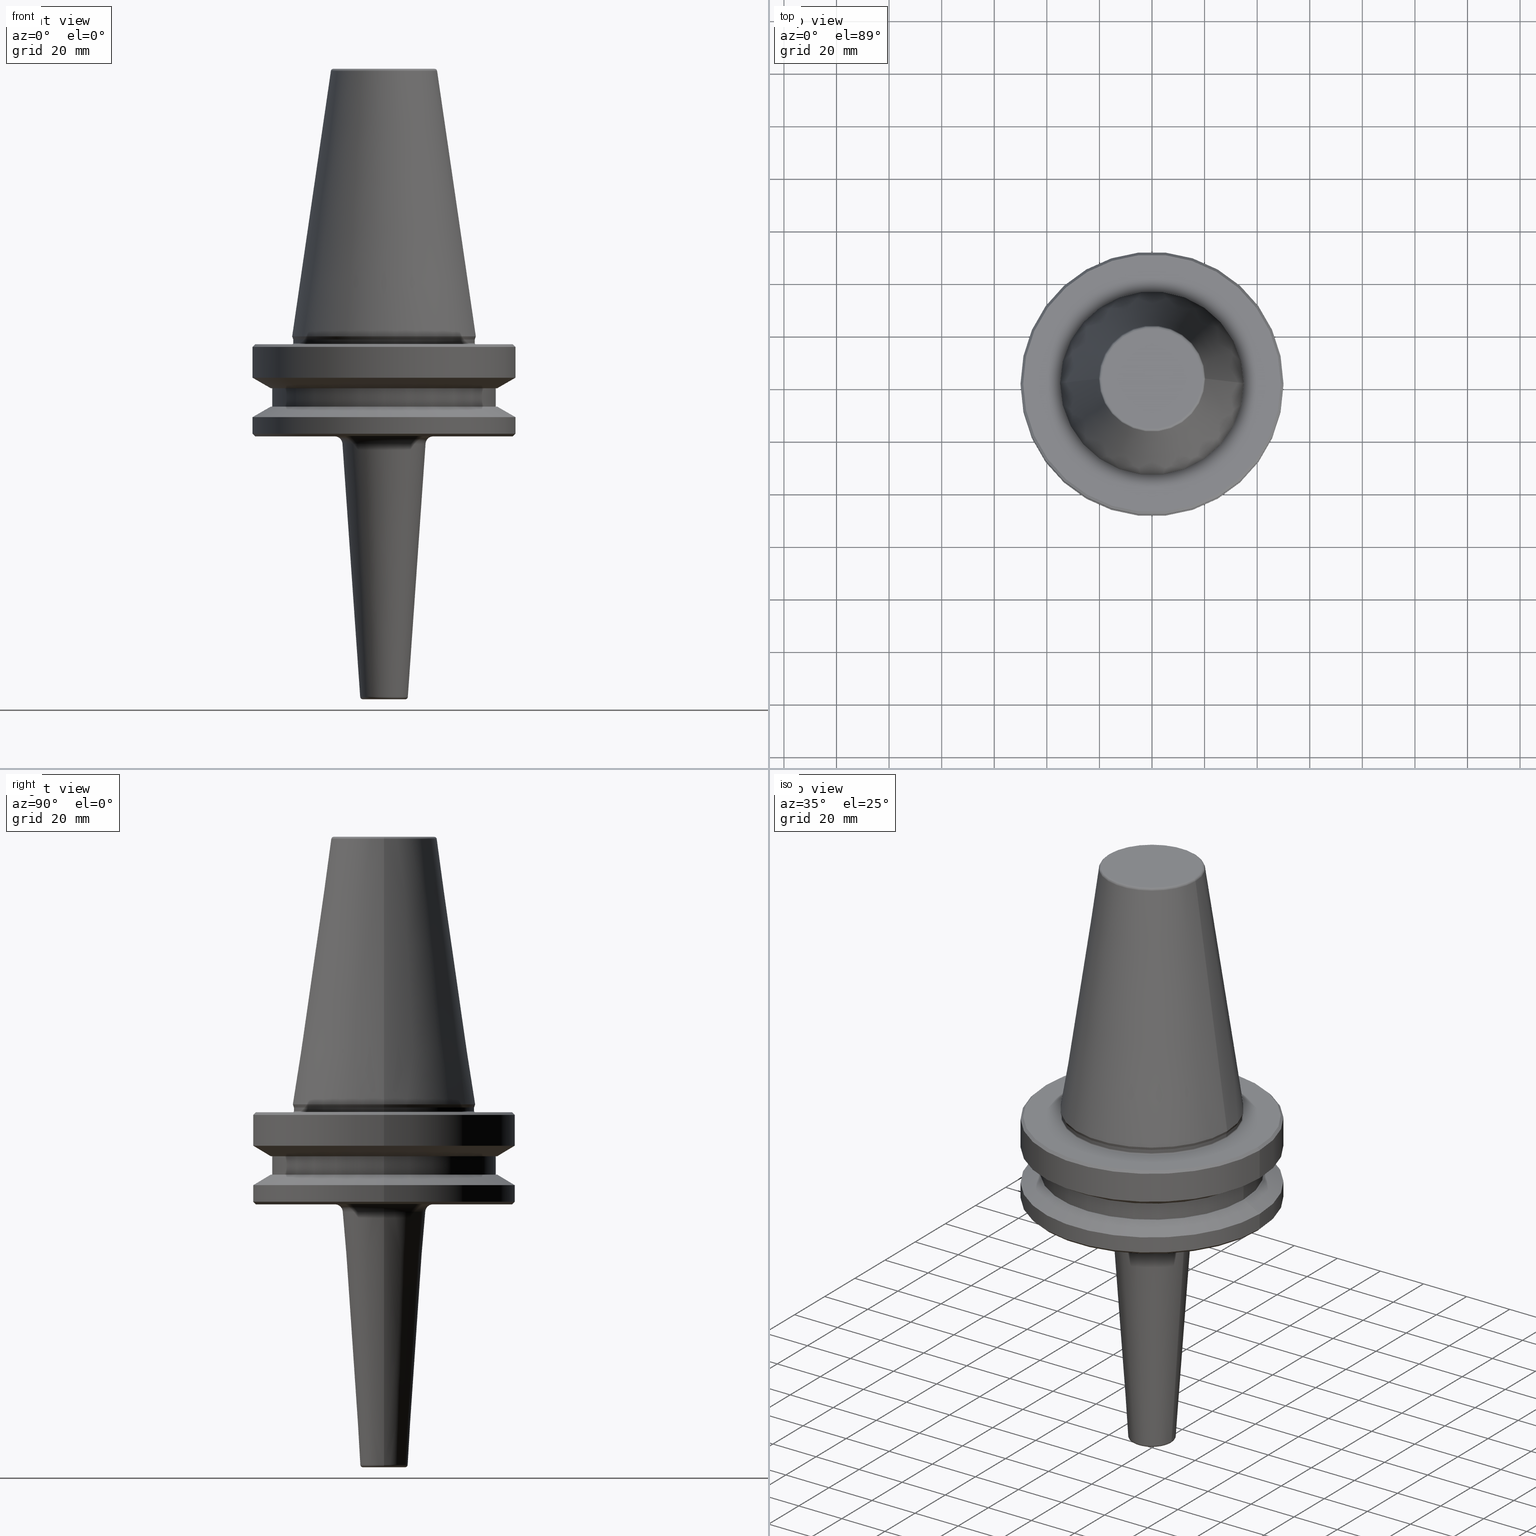
[diagram: canonical four-view strip — front | top / right | iso, engineering-drawing reading convention]
A machine part, canonical four-view strip (front | top / right | iso — engineering-drawing reading convention). The complete STEP part file that produces these views, byte-faithful:
ISO-10303-21;
HEADER;
FILE_DESCRIPTION (( 'STEP AP203' ),
    '1' );
FILE_NAME ('BT50 MCA10 100 AD+B-2.5G 25000 SL.STEP',
    '2019-05-24T10:47:12',
    ( '' ),
    ( '' ),
    'SwSTEP 2.0',
    'SolidWorks 2014',
    '' );
FILE_SCHEMA (( 'CONFIG_CONTROL_DESIGN' ));
ENDSEC;

DATA;
#1 = CARTESIAN_POINT ( 'NONE',  ( 20.20381605152244500, 3.375666405914009100E-015, 100.9443082272672900 ) ) ;
#2 = CARTESIAN_POINT ( 'NONE',  ( 35.00000000000000000, 0.0000000000000000000, -2.999999999999995600 ) ) ;
#3 = EDGE_LOOP ( 'NONE', ( #600, #328, #903, #258 ) ) ;
#4 = DIRECTION ( 'NONE',  ( 1.000000000000000000, 0.0000000000000000000, 0.0000000000000000000 ) ) ;
#5 = ADVANCED_FACE ( 'NONE', ( #127 ), #103, .T. ) ;
#6 = CARTESIAN_POINT ( 'NONE',  ( 0.0000000000000000000, 0.0000000000000000000, -30.69977999677324500 ) ) ;
#7 = AXIS2_PLACEMENT_3D ( 'NONE', #233, #801, #308 ) ;
#8 = CARTESIAN_POINT ( 'NONE',  ( -43.07217782649103600, 5.699027233244276000E-015, -19.70000000000001000 ) ) ;
#9 = DIRECTION ( 'NONE',  ( 1.000000000000000000, 0.0000000000000000000, 0.0000000000000000000 ) ) ;
#10 = CIRCLE ( 'NONE', #922, 49.00000000000000000 ) ;
#11 = ADVANCED_FACE ( 'NONE', ( #557 ), #485, .T. ) ;
#12 = EDGE_LOOP ( 'NONE', ( #201, #688 ) ) ;
#13 = DIRECTION ( 'NONE',  ( -0.0000000000000000000, -0.0000000000000000000, 1.000000000000000000 ) ) ;
#14 = VECTOR ( 'NONE', #383, 1000.000000000000000 ) ;
#15 = CIRCLE ( 'NONE', #473, 49.00000000000000000 ) ;
#16 = AXIS2_PLACEMENT_3D ( 'NONE', #470, #486, #280 ) ;
#17 = DIRECTION ( 'NONE',  ( -0.0000000000000000000, -0.0000000000000000000, 1.000000000000000000 ) ) ;
#18 = CARTESIAN_POINT ( 'NONE',  ( 0.0000000000000000000, 0.0000000000000000000, -38.00000000000002100 ) ) ;
#19 = CIRCLE ( 'NONE', #570, 34.50000000000000000 ) ;
#20 = DIRECTION ( 'NONE',  ( 1.000000000000000000, 0.0000000000000000000, 0.0000000000000000000 ) ) ;
#21 = EDGE_CURVE ( 'NONE', #152, #468, #744, .T. ) ;
#22 = VECTOR ( 'NONE', #548, 999.9999999999998900 ) ;
#23 = CARTESIAN_POINT ( 'NONE',  ( 0.0000000000000000000, 0.0000000000000000000, -38.00000000000000700 ) ) ;
#24 = ORIENTED_EDGE ( 'NONE', *, *, #817, .F. ) ;
#25 = AXIS2_PLACEMENT_3D ( 'NONE', #45, #203, #686 ) ;
#26 = PERSON_AND_ORGANIZATION_ROLE ( 'design_owner' ) ;
#27 = ORIENTED_EDGE ( 'NONE', *, *, #641, .F. ) ;
#28 = DATE_TIME_ROLE ( 'classification_date' ) ;
#29 = AXIS2_PLACEMENT_3D ( 'NONE', #902, #479, #477 ) ;
#30 = FACE_OUTER_BOUND ( 'NONE', #443, .T. ) ;
#31 = ORIENTED_EDGE ( 'NONE', *, *, #895, .F. ) ;
#32 = EDGE_CURVE ( 'NONE', #963, #1002, #310, .T. ) ;
#33 = CC_DESIGN_PERSON_AND_ORGANIZATION_ASSIGNMENT ( #329, #734, ( #885 ) ) ;
#34 = COORDINATED_UNIVERSAL_TIME_OFFSET ( 5, 30, .AHEAD. ) ;
#35 = CARTESIAN_POINT ( 'NONE',  ( -34.50000000000000000, 4.255647627037052700E-015, -2.499999999999988500 ) ) ;
#36 = CIRCLE ( 'NONE', #651, 20.20381605152244500 ) ;
#37 = AXIS2_PLACEMENT_3D ( 'NONE', #398, #365, #615 ) ;
#38 = DIRECTION ( 'NONE',  ( 1.000000000000000000, 0.0000000000000000000, 0.0000000000000000000 ) ) ;
#39 = DIRECTION ( 'NONE',  ( -0.0000000000000000000, -0.0000000000000000000, 1.000000000000000000 ) ) ;
#40 = EDGE_CURVE ( 'NONE', #438, #248, #523, .T. ) ;
#41 = DIRECTION ( 'NONE',  ( 1.224646799147353200E-016, 1.000000000000000000, 0.0000000000000000000 ) ) ;
#42 = FACE_OUTER_BOUND ( 'NONE', #62, .T. ) ;
#43 = CARTESIAN_POINT ( 'NONE',  ( 50.00000000000000000, 0.0000000000000000000, -30.69977999677324500 ) ) ;
#44 = DIRECTION ( 'NONE',  ( 1.000000000000000000, 0.0000000000000000000, 0.0000000000000000000 ) ) ;
#45 = CARTESIAN_POINT ( 'NONE',  ( 0.0000000000000000000, 0.0000000000000000000, -1.167677903268202300 ) ) ;
#46 = AXIS2_PLACEMENT_3D ( 'NONE', #455, #13, #558 ) ;
#47 = DIRECTION ( 'NONE',  ( 0.0000000000000000000, 0.0000000000000000000, -1.000000000000000000 ) ) ;
#48 = ORIENTED_EDGE ( 'NONE', *, *, #869, .F. ) ;
#49 = FACE_OUTER_BOUND ( 'NONE', #159, .T. ) ;
#50 = CARTESIAN_POINT ( 'NONE',  ( -43.07217782649103600, 5.274820470751785100E-015, -19.70000000000001000 ) ) ;
#51 = DIRECTION ( 'NONE',  ( -0.7071067811865474600, 8.659560562354931600E-017, 0.7071067811865475700 ) ) ;
#52 = ADVANCED_FACE ( 'NONE', ( #351 ), #715, .T. ) ;
#53 = LOCAL_TIME ( 16, 17, 12.00000000000000000, #255 ) ;
#54 = AXIS2_PLACEMENT_3D ( 'NONE', #161, #474, #494 ) ;
#55 = CARTESIAN_POINT ( 'NONE',  ( 0.0000000000000000000, 0.0000000000000000000, 100.7999999999999800 ) ) ;
#56 = DIRECTION ( 'NONE',  ( 0.8660254037844388200, 0.0000000000000000000, 0.4999999999999997200 ) ) ;
#57 = CIRCLE ( 'NONE', #813, 34.50000000000000000 ) ;
#58 = EDGE_LOOP ( 'NONE', ( #514, #931 ) ) ;
#59 = EDGE_CURVE ( 'NONE', #702, #495, #154, .T. ) ;
#60 = DIRECTION ( 'NONE',  ( -0.1443082272673000800, 0.0000000000000000000, -0.9895327864921754600 ) ) ;
#61 = DIRECTION ( 'NONE',  ( -0.0000000000000000000, -0.0000000000000000000, 1.000000000000000000 ) ) ;
#62 = EDGE_LOOP ( 'NONE', ( #24, #362, #245, #120 ) ) ;
#63 = DIRECTION ( 'NONE',  ( -0.0000000000000000000, -0.0000000000000000000, 1.000000000000000000 ) ) ;
#64 = DIRECTION ( 'NONE',  ( -1.000000000000000000, 0.0000000000000000000, -0.0000000000000000000 ) ) ;
#65 = ORIENTED_EDGE ( 'NONE', *, *, #299, .F. ) ;
#66 = CARTESIAN_POINT ( 'NONE',  ( 0.0000000000000000000, 0.0000000000000000000, -138.0000000000000300 ) ) ;
#67 = LINE ( 'NONE', #246, #659 ) ;
#68 = AXIS2_PLACEMENT_3D ( 'NONE', #984, #519, #47 ) ;
#69 = CARTESIAN_POINT ( 'NONE',  ( 49.00000000000000000, 6.062001655779398500E-015, -2.999999999999988900 ) ) ;
#70 = CYLINDRICAL_SURFACE ( 'NONE', #661, 50.00000000000000000 ) ;
#71 = DIRECTION ( 'NONE',  ( 0.0000000000000000000, 0.0000000000000000000, -1.000000000000000000 ) ) ;
#72 = ADVANCED_FACE ( 'NONE', ( #934 ), #431, .F. ) ;
#73 = EDGE_LOOP ( 'NONE', ( #213, #944 ) ) ;
#74 = AXIS2_PLACEMENT_3D ( 'NONE', #141, #403, #481 ) ;
#75 = CARTESIAN_POINT ( 'NONE',  ( 0.0000000000000000000, 0.0000000000000000000, -38.00000000000002100 ) ) ;
#76 = ORIENTED_EDGE ( 'NONE', *, *, #432, .F. ) ;
#77 = DIRECTION ( 'NONE',  ( -0.0000000000000000000, -0.0000000000000000000, 1.000000000000000000 ) ) ;
#78 = APPROVAL_DATE_TIME ( #281, #185 ) ;
#79 = EDGE_CURVE ( 'NONE', #134, #808, #906, .T. ) ;
#80 = DATE_AND_TIME ( #618, #760 ) ;
#81 = CC_DESIGN_DATE_AND_TIME_ASSIGNMENT ( #522, #251, ( #885 ) ) ;
#82 = CARTESIAN_POINT ( 'NONE',  ( 0.0000000000000000000, 0.0000000000000000000, -26.69999999999998900 ) ) ;
#83 = ORIENTED_EDGE ( 'NONE', *, *, #762, .F. ) ;
#84 = DIRECTION ( 'NONE',  ( 1.000000000000000000, 0.0000000000000000000, 0.0000000000000000000 ) ) ;
#85 = AXIS2_PLACEMENT_3D ( 'NONE', #850, #197, #228 ) ;
#86 = VERTEX_POINT ( 'NONE', #658 ) ;
#87 = CARTESIAN_POINT ( 'NONE',  ( 50.00000000000000000, 0.0000000000000000000, -15.70022000322675400 ) ) ;
#88 = SHAPE_DEFINITION_REPRESENTATION ( #654, #673 ) ;
#89 = APPROVAL_DATE_TIME ( #80, #564 ) ;
#90 = EDGE_CURVE ( 'NONE', #1002, #963, #771, .T. ) ;
#91 = LINE ( 'NONE', #684, #298 ) ;
#92 = CARTESIAN_POINT ( 'NONE',  ( -49.00000000000000000, 6.062001655779398500E-015, -38.00000000000002100 ) ) ;
#93 = APPLICATION_PROTOCOL_DEFINITION ( 'international standard', 'config_control_design', 1994, #578 ) ;
#94 = FACE_OUTER_BOUND ( 'NONE', #416, .T. ) ;
#95 = DIRECTION ( 'NONE',  ( 1.000000000000000000, 0.0000000000000000000, 0.0000000000000000000 ) ) ;
#96 = ORIENTED_EDGE ( 'NONE', *, *, #32, .F. ) ;
#97 = VERTEX_POINT ( 'NONE', #907 ) ;
#98 = APPROVAL_ROLE ( '' ) ;
#99 = EDGE_LOOP ( 'NONE', ( #27, #291 ) ) ;
#100 = AXIS2_PLACEMENT_3D ( 'NONE', #717, #237, #806 ) ;
#101 = CARTESIAN_POINT ( 'NONE',  ( 0.0000000000000000000, 0.0000000000000000000, -3.999999999999989800 ) ) ;
#102 = APPROVAL_PERSON_ORGANIZATION ( #309, #185, #326 ) ;
#103 = CYLINDRICAL_SURFACE ( 'NONE', #29, 50.00000000000000000 ) ;
#104 = FACE_OUTER_BOUND ( 'NONE', #517, .T. ) ;
#105 = AXIS2_PLACEMENT_3D ( 'NONE', #896, #17, #911 ) ;
#106 = ORIENTED_EDGE ( 'NONE', *, *, #935, .F. ) ;
#107 = DIRECTION ( 'NONE',  ( -0.0000000000000000000, -0.0000000000000000000, 1.000000000000000000 ) ) ;
#108 = VERTEX_POINT ( 'NONE', #498 ) ;
#109 = EDGE_CURVE ( 'NONE', #495, #702, #980, .T. ) ;
#110 = DIRECTION ( 'NONE',  ( -0.0000000000000000000, -0.0000000000000000000, 1.000000000000000000 ) ) ;
#111 = ORIENTED_EDGE ( 'NONE', *, *, #285, .T. ) ;
#112 = DIRECTION ( 'NONE',  ( -0.0000000000000000000, -0.0000000000000000000, 1.000000000000000000 ) ) ;
#113 = LINE ( 'NONE', #390, #139 ) ;
#114 = ADVANCED_FACE ( 'NONE', ( #330 ), #222, .T. ) ;
#115 = CARTESIAN_POINT ( 'NONE',  ( 8.067552993919441900, 0.0000000000000000000, -138.0000000000000300 ) ) ;
#116 = CIRCLE ( 'NONE', #998, 0.5000000000000004400 ) ;
#117 = LINE ( 'NONE', #50, #268 ) ;
#118 = PERSON ( 'UNSPECIFIED', 'UNSPECIFIED', 'UNSPECIFIED', ('UNSPECIFIED'), ('UNSPECIFIED'), ('UNSPECIFIED') ) ;
#119 = EDGE_LOOP ( 'NONE', ( #805, #727, #137, #162 ) ) ;
#120 = ORIENTED_EDGE ( 'NONE', *, *, #59, .T. ) ;
#121 = ORIENTED_EDGE ( 'NONE', *, *, #831, .F. ) ;
#122 = ADVANCED_FACE ( 'NONE', ( #636, #793 ), #545, .F. ) ;
#123 = VERTEX_POINT ( 'NONE', #542 ) ;
#124 = DIRECTION ( 'NONE',  ( -1.000000000000000000, 0.0000000000000000000, -0.0000000000000000000 ) ) ;
#125 = VERTEX_POINT ( 'NONE', #551 ) ;
#126 = COORDINATED_UNIVERSAL_TIME_OFFSET ( 5, 30, .AHEAD. ) ;
#127 = FACE_OUTER_BOUND ( 'NONE', #689, .T. ) ;
#128 = CARTESIAN_POINT ( 'NONE',  ( 50.00000000000000000, 0.0000000000000000000, -37.00000000000002100 ) ) ;
#129 = EDGE_CURVE ( 'NONE', #371, #466, #837, .T. ) ;
#130 = DIRECTION ( 'NONE',  ( 0.0000000000000000000, -1.000000000000000000, 0.0000000000000000000 ) ) ;
#131 = DIRECTION ( 'NONE',  ( -1.000000000000000000, 0.0000000000000000000, 0.0000000000000000000 ) ) ;
#132 = PRODUCT_DEFINITION_FORMATION_WITH_SPECIFIED_SOURCE ( 'ANY', '', #735, .NOT_KNOWN. ) ;
#133 = CARTESIAN_POINT ( 'NONE',  ( -20.20381605152244500, 0.0000000000000000000, 100.9443082272672900 ) ) ;
#134 = VERTEX_POINT ( 'NONE', #533 ) ;
#135 = TOROIDAL_SURFACE ( 'NONE', #419, 19.21428326503027200, 0.9999999999999983300 ) ;
#136 = DIRECTION ( 'NONE',  ( -0.0000000000000000000, -0.0000000000000000000, 1.000000000000000000 ) ) ;
#137 = ORIENTED_EDGE ( 'NONE', *, *, #198, .T. ) ;
#138 = AXIS2_PLACEMENT_3D ( 'NONE', #981, #396, #748 ) ;
#139 = VECTOR ( 'NONE', #315, 1000.000000000000000 ) ;
#140 = CARTESIAN_POINT ( 'NONE',  ( 0.0000000000000000000, 43.07217782649103600, -19.70000000000000300 ) ) ;
#141 = CARTESIAN_POINT ( 'NONE',  ( 0.0000000000000000000, 0.0000000000000000000, 124.5046326327850600 ) ) ;
#142 = CONICAL_SURFACE ( 'NONE', #138, 43.07217782649103600, 1.047197551196598100 ) ;
#143 = FACE_OUTER_BOUND ( 'NONE', #271, .T. ) ;
#144 = ORIENTED_EDGE ( 'NONE', *, *, #332, .T. ) ;
#145 = CIRCLE ( 'NONE', #767, 18.79734101824190200 ) ;
#146 = EDGE_CURVE ( 'NONE', #152, #495, #150, .T. ) ;
#147 = CIRCLE ( 'NONE', #105, 50.00000000000000000 ) ;
#148 = ORIENTED_EDGE ( 'NONE', *, *, #217, .F. ) ;
#149 = EDGE_LOOP ( 'NONE', ( #314, #327, #513, #791 ) ) ;
#150 = CIRCLE ( 'NONE', #716, 2.999999999999999100 ) ;
#151 = DIRECTION ( 'NONE',  ( -1.000000000000000000, 0.0000000000000000000, 0.0000000000000000000 ) ) ;
#152 = VERTEX_POINT ( 'NONE', #550 ) ;
#153 = LOCAL_TIME ( 16, 17, 12.00000000000000000, #350 ) ;
#154 = CIRCLE ( 'NONE', #179, 15.80466411681702400 ) ;
#155 = CARTESIAN_POINT ( 'NONE',  ( 0.0000000000000000000, 35.00000000000000000, -3.000000000000002700 ) ) ;
#156 = CARTESIAN_POINT ( 'NONE',  ( -34.50000000000000000, 4.225031457058368900E-015, 124.5046326327850600 ) ) ;
#157 = ORIENTED_EDGE ( 'NONE', *, *, #317, .F. ) ;
#158 = AXIS2_PLACEMENT_3D ( 'NONE', #799, #107, #750 ) ;
#159 = EDGE_LOOP ( 'NONE', ( #209, #756, #956, #820 ) ) ;
#160 = DIRECTION ( 'NONE',  ( 1.000000000000000000, 0.0000000000000000000, 0.0000000000000000000 ) ) ;
#161 = CARTESIAN_POINT ( 'NONE',  ( 0.0000000000000000000, 0.0000000000000000000, -1.167677903268202300 ) ) ;
#162 = ORIENTED_EDGE ( 'NONE', *, *, #853, .F. ) ;
#163 = FACE_BOUND ( 'NONE', #99, .T. ) ;
#164 = EDGE_CURVE ( 'NONE', #811, #889, #349, .T. ) ;
#165 = CIRCLE ( 'NONE', #244, 49.00000000000000000 ) ;
#166 = ORIENTED_EDGE ( 'NONE', *, *, #853, .T. ) ;
#167 = DIRECTION ( 'NONE',  ( -0.0000000000000000000, -0.0000000000000000000, 1.000000000000000000 ) ) ;
#168 =( NAMED_UNIT ( * ) PLANE_ANGLE_UNIT ( ) SI_UNIT ( $, .RADIAN. ) );
#169 = DIRECTION ( 'NONE',  ( 0.0000000000000000000, -1.000000000000000000, 0.0000000000000000000 ) ) ;
#170 = ORIENTED_EDGE ( 'NONE', *, *, #465, .T. ) ;
#171 = AXIS2_PLACEMENT_3D ( 'NONE', #695, #208, #775 ) ;
#172 = VERTEX_POINT ( 'NONE', #588 ) ;
#173 = PLANE ( 'NONE',  #440 ) ;
#174 = APPROVAL_ROLE ( '' ) ;
#175 = ORIENTED_EDGE ( 'NONE', *, *, #721, .F. ) ;
#176 = ORIENTED_EDGE ( 'NONE', *, *, #465, .F. ) ;
#177 = ORGANIZATION ( 'UNSPECIFIED', 'UNSPECIFIED', '' ) ;
#178 = DIRECTION ( 'NONE',  ( 1.000000000000000000, 0.0000000000000000000, 0.0000000000000000000 ) ) ;
#179 = AXIS2_PLACEMENT_3D ( 'NONE', #424, #188, #665 ) ;
#180 = CIRCLE ( 'NONE', #708, 20.20381605152244500 ) ;
#181 = EDGE_LOOP ( 'NONE', ( #835, #500, #456, #664 ) ) ;
#182 = CIRCLE ( 'NONE', #363, 49.00000000000000000 ) ;
#183 = FACE_OUTER_BOUND ( 'NONE', #882, .T. ) ;
#184 = EDGE_CURVE ( 'NONE', #650, #108, #610, .T. ) ;
#185 = APPROVAL ( #821, 'UNSPECIFIED' ) ;
#186 = DIRECTION ( 'NONE',  ( -0.0000000000000000000, -0.0000000000000000000, 1.000000000000000000 ) ) ;
#187 = DIRECTION ( 'NONE',  ( -0.0000000000000000000, -0.0000000000000000000, 1.000000000000000000 ) ) ;
#188 = DIRECTION ( 'NONE',  ( 0.0000000000000000000, 0.0000000000000000000, -1.000000000000000000 ) ) ;
#189 = CARTESIAN_POINT ( 'NONE',  ( 0.0000000000000000000, 0.0000000000000000000, -15.70022000322675400 ) ) ;
#190 = AXIS2_PLACEMENT_3D ( 'NONE', #6, #740, #131 ) ;
#191 = DIRECTION ( 'NONE',  ( 1.000000000000000000, 0.0000000000000000000, 0.0000000000000000000 ) ) ;
#192 = ORIENTED_EDGE ( 'NONE', *, *, #510, .T. ) ;
#193 = CARTESIAN_POINT ( 'NONE',  ( 0.0000000000000000000, 0.0000000000000000000, -137.0000000000000000 ) ) ;
#194 = TOROIDAL_SURFACE ( 'NONE', #888, 8.067552993919441900, 1.000000000000010200 ) ;
#195 = CARTESIAN_POINT ( 'NONE',  ( 0.0000000000000000000, 0.0000000000000000000, -2.500000000000002200 ) ) ;
#196 = ORIENTED_EDGE ( 'NONE', *, *, #404, .T. ) ;
#197 = DIRECTION ( 'NONE',  ( -0.0000000000000000000, -0.0000000000000000000, 1.000000000000000000 ) ) ;
#198 = EDGE_CURVE ( 'NONE', #749, #125, #200, .T. ) ;
#199 = CARTESIAN_POINT ( 'NONE',  ( -19.21428326503027200, 2.413662457824437800E-015, 101.7999999999999800 ) ) ;
#200 = LINE ( 'NONE', #678, #583 ) ;
#201 = ORIENTED_EDGE ( 'NONE', *, *, #432, .T. ) ;
#202 = ORIENTED_EDGE ( 'NONE', *, *, #370, .T. ) ;
#203 = DIRECTION ( 'NONE',  ( -0.0000000000000000000, -0.0000000000000000000, 1.000000000000000000 ) ) ;
#204 = DIRECTION ( 'NONE',  ( 1.000000000000000000, 0.0000000000000000000, 0.0000000000000000000 ) ) ;
#205 = DIRECTION ( 'NONE',  ( -0.0000000000000000000, -0.0000000000000000000, 1.000000000000000000 ) ) ;
#206 = AXIS2_PLACEMENT_3D ( 'NONE', #82, #649, #160 ) ;
#207 = EDGE_LOOP ( 'NONE', ( #359, #348 ) ) ;
#208 = DIRECTION ( 'NONE',  ( -0.0000000000000000000, -0.0000000000000000000, 1.000000000000000000 ) ) ;
#209 = ORIENTED_EDGE ( 'NONE', *, *, #781, .T. ) ;
#210 = CARTESIAN_POINT ( 'NONE',  ( 18.79734101824190200, 0.0000000000000000000, -38.00000000000000700 ) ) ;
#211 = CIRCLE ( 'NONE', #679, 0.5000000000000004400 ) ;
#212 = AXIS2_PLACEMENT_3D ( 'NONE', #995, #773, #95 ) ;
#213 = ORIENTED_EDGE ( 'NONE', *, *, #914, .F. ) ;
#214 = ADVANCED_FACE ( 'NONE', ( #947 ), #320, .F. ) ;
#215 = CARTESIAN_POINT ( 'NONE',  ( -34.92499999999999700, 0.0000000000000000000, 0.0000000000000000000 ) ) ;
#216 = DIRECTION ( 'NONE',  ( -0.0000000000000000000, -0.0000000000000000000, 1.000000000000000000 ) ) ;
#217 = EDGE_CURVE ( 'NONE', #86, #702, #91, .T. ) ;
#218 = CARTESIAN_POINT ( 'NONE',  ( 0.0000000000000000000, 0.0000000000000000000, -138.0000000000000300 ) ) ;
#219 = EDGE_LOOP ( 'NONE', ( #812, #111, #461, #780 ) ) ;
#220 = CARTESIAN_POINT ( 'NONE',  ( 0.0000000000000000000, 0.0000000000000000000, -38.00000000000002100 ) ) ;
#221 = DIRECTION ( 'NONE',  ( 1.000000000000000000, 0.0000000000000000000, 0.0000000000000000000 ) ) ;
#222 = CONICAL_SURFACE ( 'NONE', #482, 16.00000000000004300, 0.06988600163464235600 ) ;
#223 = ORIENTED_EDGE ( 'NONE', *, *, #817, .T. ) ;
#224 = AXIS2_PLACEMENT_3D ( 'NONE', #421, #616, #124 ) ;
#225 = DIRECTION ( 'NONE',  ( -0.0000000000000000000, -0.0000000000000000000, 1.000000000000000000 ) ) ;
#226 = DIRECTION ( 'NONE',  ( 1.000000000000000000, 0.0000000000000000000, 0.0000000000000000000 ) ) ;
#227 = CARTESIAN_POINT ( 'NONE',  ( 0.0000000000000000000, 0.0000000000000000000, -30.69977999677324500 ) ) ;
#228 = DIRECTION ( 'NONE',  ( 1.000000000000000000, 0.0000000000000000000, 0.0000000000000000000 ) ) ;
#229 = CYLINDRICAL_SURFACE ( 'NONE', #834, 34.50000000000000000 ) ;
#230 = AXIS2_PLACEMENT_3D ( 'NONE', #324, #450, #462 ) ;
#231 = DIRECTION ( 'NONE',  ( -0.0000000000000000000, -0.0000000000000000000, 1.000000000000000000 ) ) ;
#232 = EDGE_LOOP ( 'NONE', ( #478, #408, #196, #669 ) ) ;
#233 = CARTESIAN_POINT ( 'NONE',  ( 0.0000000000000000000, 0.0000000000000000000, -19.70000000000001000 ) ) ;
#234 = VERTEX_POINT ( 'NONE', #683 ) ;
#235 = CIRCLE ( 'NONE', #68, 1.000000000000000900 ) ;
#236 = ORIENTED_EDGE ( 'NONE', *, *, #605, .T. ) ;
#237 = DIRECTION ( 'NONE',  ( 1.224646799147353200E-016, 1.000000000000000000, 0.0000000000000000000 ) ) ;
#238 = EDGE_CURVE ( 'NONE', #691, #645, #897, .T. ) ;
#239 = APPROVAL_PERSON_ORGANIZATION ( #430, #564, #98 ) ;
#240 = ORIENTED_EDGE ( 'NONE', *, *, #674, .F. ) ;
#241 = DIRECTION ( 'NONE',  ( 1.000000000000000000, 0.0000000000000000000, 0.0000000000000000000 ) ) ;
#242 = CC_DESIGN_APPROVAL ( #185, ( #132 ) ) ;
#243 = CARTESIAN_POINT ( 'NONE',  ( 50.00000000000000000, 6.123233995736766100E-015, -30.69977999677324500 ) ) ;
#244 = AXIS2_PLACEMENT_3D ( 'NONE', #480, #1001, #221 ) ;
#245 = ORIENTED_EDGE ( 'NONE', *, *, #217, .T. ) ;
#246 = CARTESIAN_POINT ( 'NONE',  ( 34.92499999999999700, 4.277078946022130900E-015, 0.0000000000000000000 ) ) ;
#247 = ORIENTED_EDGE ( 'NONE', *, *, #794, .T. ) ;
#248 = VERTEX_POINT ( 'NONE', #985 ) ;
#249 = CONICAL_SURFACE ( 'NONE', #454, 43.07217782649103600, 1.047197551196598100 ) ;
#250 = EDGE_CURVE ( 'NONE', #262, #632, #732, .T. ) ;
#251 = DATE_TIME_ROLE ( 'creation_date' ) ;
#252 = AXIS2_PLACEMENT_3D ( 'NONE', #155, #312, #866 ) ;
#253 = ORIENTED_EDGE ( 'NONE', *, *, #843, .T. ) ;
#254 = ORIENTED_EDGE ( 'NONE', *, *, #581, .T. ) ;
#255 = COORDINATED_UNIVERSAL_TIME_OFFSET ( 5, 30, .AHEAD. ) ;
#256 = AXIS2_PLACEMENT_3D ( 'NONE', #278, #972, #921 ) ;
#257 = CARTESIAN_POINT ( 'NONE',  ( 0.0000000000000000000, 0.0000000000000000000, -19.70000000000001000 ) ) ;
#258 = ORIENTED_EDGE ( 'NONE', *, *, #537, .F. ) ;
#259 = ORIENTED_EDGE ( 'NONE', *, *, #164, .F. ) ;
#260 = EDGE_CURVE ( 'NONE', #889, #567, #117, .T. ) ;
#261 = DESIGN_CONTEXT ( 'detailed design', #578, 'design' ) ;
#262 = VERTEX_POINT ( 'NONE', #92 ) ;
#263 = DIRECTION ( 'NONE',  ( 1.000000000000000000, 0.0000000000000000000, 0.0000000000000000000 ) ) ;
#264 = ADVANCED_FACE ( 'NONE', ( #143 ), #789, .T. ) ;
#265 = VECTOR ( 'NONE', #942, 1000.000000000000000 ) ;
#266 = AXIS2_PLACEMENT_3D ( 'NONE', #355, #841, #426 ) ;
#267 = DIRECTION ( 'NONE',  ( -0.0000000000000000000, -0.0000000000000000000, 1.000000000000000000 ) ) ;
#268 = VECTOR ( 'NONE', #274, 1000.000000000000000 ) ;
#269 = ADVANCED_FACE ( 'NONE', ( #876 ), #899, .T. ) ;
#270 = DIRECTION ( 'NONE',  ( -0.3420201433256682700, 4.188538737676986200E-017, 0.9396926207859086500 ) ) ;
#271 = EDGE_LOOP ( 'NONE', ( #534, #861, #917, #892 ) ) ;
#272 = CARTESIAN_POINT ( 'NONE',  ( 0.0000000000000000000, 0.0000000000000000000, -19.70000000000001000 ) ) ;
#273 = EDGE_LOOP ( 'NONE', ( #928, #335, #76, #240 ) ) ;
#274 = DIRECTION ( 'NONE',  ( -0.8660254037844388200, 1.060575238724907200E-016, 0.4999999999999997200 ) ) ;
#275 = AXIS2_PLACEMENT_3D ( 'NONE', #819, #996, #893 ) ;
#276 = CARTESIAN_POINT ( 'NONE',  ( -8.067552993919441900, 1.049073164899046400E-015, -138.0000000000000300 ) ) ;
#277 = ADVANCED_FACE ( 'NONE', ( #472 ), #575, .T. ) ;
#278 = CARTESIAN_POINT ( 'NONE',  ( 0.0000000000000000000, 0.0000000000000000000, -37.00000000000002100 ) ) ;
#279 = ADVANCED_FACE ( 'NONE', ( #733 ), #511, .F. ) ;
#280 = DIRECTION ( 'NONE',  ( -1.000000000000000000, 0.0000000000000000000, 0.0000000000000000000 ) ) ;
#281 = DATE_AND_TIME ( #484, #714 ) ;
#282 = VERTEX_POINT ( 'NONE', #754 ) ;
#283 = DIRECTION ( 'NONE',  ( -0.0000000000000000000, -0.0000000000000000000, 1.000000000000000000 ) ) ;
#284 = FACE_BOUND ( 'NONE', #571, .T. ) ;
#285 = EDGE_CURVE ( 'NONE', #842, #720, #322, .T. ) ;
#286 = CC_DESIGN_PERSON_AND_ORGANIZATION_ASSIGNMENT ( #884, #877, ( #132 ) ) ;
#287 = CARTESIAN_POINT ( 'NONE',  ( -50.00000000000000000, 0.0000000000000000000, -30.69977999677324500 ) ) ;
#288 = DIRECTION ( 'NONE',  ( -0.0000000000000000000, -0.0000000000000000000, 1.000000000000000000 ) ) ;
#289 = ORIENTED_EDGE ( 'NONE', *, *, #605, .F. ) ;
#290 = DIRECTION ( 'NONE',  ( -0.0000000000000000000, -0.0000000000000000000, 1.000000000000000000 ) ) ;
#291 = ORIENTED_EDGE ( 'NONE', *, *, #306, .F. ) ;
#292 = AXIS2_PLACEMENT_3D ( 'NONE', #101, #739, #226 ) ;
#293 = DIRECTION ( 'NONE',  ( 1.000000000000000000, 0.0000000000000000000, 0.0000000000000000000 ) ) ;
#294 = ORIENTED_EDGE ( 'NONE', *, *, #448, .T. ) ;
#295 = FACE_OUTER_BOUND ( 'NONE', #710, .T. ) ;
#296 = DIRECTION ( 'NONE',  ( -0.0000000000000000000, -0.0000000000000000000, 1.000000000000000000 ) ) ;
#297 = FACE_OUTER_BOUND ( 'NONE', #418, .T. ) ;
#298 = VECTOR ( 'NONE', #879, 1000.000000000000200 ) ;
#299 = EDGE_CURVE ( 'NONE', #567, #977, #147, .T. ) ;
#300 = DIRECTION ( 'NONE',  ( 0.0000000000000000000, 0.0000000000000000000, -1.000000000000000000 ) ) ;
#301 = TOROIDAL_SURFACE ( 'NONE', #410, 8.067552993919441900, 1.000000000000010200 ) ;
#302 = ORIENTED_EDGE ( 'NONE', *, *, #990, .F. ) ;
#303 = ORIENTED_EDGE ( 'NONE', *, *, #250, .F. ) ;
#304 = ORIENTED_EDGE ( 'NONE', *, *, #21, .T. ) ;
#305 = DIRECTION ( 'NONE',  ( -0.0000000000000000000, -0.0000000000000000000, 1.000000000000000000 ) ) ;
#306 = EDGE_CURVE ( 'NONE', #97, #845, #925, .T. ) ;
#307 = AXIS2_PLACEMENT_3D ( 'NONE', #18, #938, #559 ) ;
#308 = DIRECTION ( 'NONE',  ( 1.000000000000000000, 0.0000000000000000000, 0.0000000000000000000 ) ) ;
#309 = PERSON_AND_ORGANIZATION ( #118, #177 ) ;
#310 = CIRCLE ( 'NONE', #983, 43.07217782649105000 ) ;
#311 = CIRCLE ( 'NONE', #392, 9.065111961061063500 ) ;
#312 = DIRECTION ( 'NONE',  ( 0.0000000000000000000, 0.0000000000000000000, -1.000000000000000000 ) ) ;
#313 = AXIS2_PLACEMENT_3D ( 'NONE', #75, #187, #954 ) ;
#314 = ORIENTED_EDGE ( 'NONE', *, *, #21, .F. ) ;
#315 = DIRECTION ( 'NONE',  ( -0.0000000000000000000, -0.0000000000000000000, 1.000000000000000000 ) ) ;
#316 = DIRECTION ( 'NONE',  ( -0.0000000000000000000, -0.0000000000000000000, 1.000000000000000000 ) ) ;
#317 = EDGE_CURVE ( 'NONE', #725, #134, #345, .T. ) ;
#318 = ORIENTED_EDGE ( 'NONE', *, *, #843, .F. ) ;
#319 = LINE ( 'NONE', #156, #920 ) ;
#320 = TOROIDAL_SURFACE ( 'NONE', #909, 18.79734101824190200, 3.000000000000000000 ) ;
#321 = ORIENTED_EDGE ( 'NONE', *, *, #762, .T. ) ;
#322 = LINE ( 'NONE', #989, #951 ) ;
#323 = AXIS2_PLACEMENT_3D ( 'NONE', #429, #993, #526 ) ;
#324 = CARTESIAN_POINT ( 'NONE',  ( 0.0000000000000000000, 0.0000000000000000000, 124.5046326327850600 ) ) ;
#325 = ORIENTED_EDGE ( 'NONE', *, *, #590, .F. ) ;
#326 = APPROVAL_ROLE ( '' ) ;
#327 = ORIENTED_EDGE ( 'NONE', *, *, #146, .T. ) ;
#328 = ORIENTED_EDGE ( 'NONE', *, *, #299, .T. ) ;
#329 = PERSON_AND_ORGANIZATION ( #118, #177 ) ;
#330 = FACE_OUTER_BOUND ( 'NONE', #629, .T. ) ;
#331 = AXIS2_PLACEMENT_3D ( 'NONE', #639, #668, #563 ) ;
#332 = EDGE_CURVE ( 'NONE', #709, #632, #544, .T. ) ;
#333 = CC_DESIGN_PERSON_AND_ORGANIZATION_ASSIGNMENT ( #696, #402, ( #132 ) ) ;
#334 = FACE_BOUND ( 'NONE', #73, .T. ) ;
#335 = ORIENTED_EDGE ( 'NONE', *, *, #628, .T. ) ;
#336 = ORIENTED_EDGE ( 'NONE', *, *, #747, .T. ) ;
#337 = DIRECTION ( 'NONE',  ( 1.000000000000000000, 0.0000000000000000000, 0.0000000000000000000 ) ) ;
#338 = ADVANCED_FACE ( 'NONE', ( #94 ), #623, .T. ) ;
#339 = DIRECTION ( 'NONE',  ( 0.0000000000000000000, -0.0000000000000000000, 1.000000000000000000 ) ) ;
#340 = FACE_OUTER_BOUND ( 'NONE', #958, .T. ) ;
#341 = CARTESIAN_POINT ( 'NONE',  ( 35.00000000000000000, 0.0000000000000000000, -2.500000000000002200 ) ) ;
#342 = FACE_OUTER_BOUND ( 'NONE', #181, .T. ) ;
#343 = ORIENTED_EDGE ( 'NONE', *, *, #238, .T. ) ;
#344 = ADVANCED_FACE ( 'NONE', ( #49 ), #301, .T. ) ;
#345 = LINE ( 'NONE', #215, #475 ) ;
#346 = EDGE_CURVE ( 'NONE', #262, #172, #182, .T. ) ;
#347 = CARTESIAN_POINT ( 'NONE',  ( -50.00000000000000000, 6.123233995736766100E-015, 124.5046326327850600 ) ) ;
#348 = ORIENTED_EDGE ( 'NONE', *, *, #346, .F. ) ;
#349 = CIRCLE ( 'NONE', #774, 43.07217782649103600 ) ;
#350 = COORDINATED_UNIVERSAL_TIME_OFFSET ( 5, 30, .AHEAD. ) ;
#351 = FACE_OUTER_BOUND ( 'NONE', #978, .T. ) ;
#352 = EDGE_CURVE ( 'NONE', #234, #123, #384, .T. ) ;
#353 = CARTESIAN_POINT ( 'NONE',  ( 0.0000000000000000000, 0.0000000000000000000, -1.167677903268202300 ) ) ;
#354 = AXIS2_PLACEMENT_3D ( 'NONE', #23, #655, #726 ) ;
#355 = CARTESIAN_POINT ( 'NONE',  ( 0.0000000000000000000, 0.0000000000000000000, -2.500000000000002200 ) ) ;
#356 = LINE ( 'NONE', #847, #663 ) ;
#357 = LINE ( 'NONE', #347, #644 ) ;
#358 = ADVANCED_FACE ( 'NONE', ( #991 ), #687, .T. ) ;
#359 = ORIENTED_EDGE ( 'NONE', *, *, #637, .F. ) ;
#360 = CARTESIAN_POINT ( 'NONE',  ( -50.00000000000000000, 6.123233995736766100E-015, -30.69977999677324500 ) ) ;
#361 = VECTOR ( 'NONE', #270, 999.9999999999998900 ) ;
#362 = ORIENTED_EDGE ( 'NONE', *, *, #562, .T. ) ;
#363 = AXIS2_PLACEMENT_3D ( 'NONE', #220, #652, #44 ) ;
#364 = CARTESIAN_POINT ( 'NONE',  ( 0.0000000000000000000, 0.0000000000000000000, -30.69977999677324500 ) ) ;
#365 = DIRECTION ( 'NONE',  ( 0.0000000000000000000, 0.0000000000000000000, -1.000000000000000000 ) ) ;
#366 = ORIENTED_EDGE ( 'NONE', *, *, #387, .T. ) ;
#367 = DIRECTION ( 'NONE',  ( -0.8660254037844383700, 0.0000000000000000000, -0.5000000000000004400 ) ) ;
#368 = VECTOR ( 'NONE', #77, 1000.000000000000000 ) ;
#369 = VECTOR ( 'NONE', #856, 1000.000000000000000 ) ;
#370 = EDGE_CURVE ( 'NONE', #977, #567, #849, .T. ) ;
#371 = VERTEX_POINT ( 'NONE', #43 ) ;
#372 = DIRECTION ( 'NONE',  ( 1.000000000000000000, 0.0000000000000000000, 0.0000000000000000000 ) ) ;
#373 = CARTESIAN_POINT ( 'NONE',  ( -16.00000000000004300, 1.959434878635770300E-015, -38.00000000000000700 ) ) ;
#374 = EDGE_LOOP ( 'NONE', ( #31, #343, #451, #561 ) ) ;
#375 = AXIS2_PLACEMENT_3D ( 'NONE', #364, #913, #435 ) ;
#376 = CIRCLE ( 'NONE', #46, 34.50000000000000000 ) ;
#377 = CARTESIAN_POINT ( 'NONE',  ( 0.0000000000000000000, 0.0000000000000000000, -26.69999999999998900 ) ) ;
#378 = ORIENTED_EDGE ( 'NONE', *, *, #1003, .T. ) ;
#379 = ORIENTED_EDGE ( 'NONE', *, *, #491, .T. ) ;
#380 = AXIS2_PLACEMENT_3D ( 'NONE', #503, #508, #509 ) ;
#381 = VECTOR ( 'NONE', #446, 1000.000000000000200 ) ;
#382 = CYLINDRICAL_SURFACE ( 'NONE', #873, 50.00000000000000000 ) ;
#383 = DIRECTION ( 'NONE',  ( -0.7071067811865474600, 0.0000000000000000000, -0.7071067811865475700 ) ) ;
#384 = LINE ( 'NONE', #822, #14 ) ;
#385 = LINE ( 'NONE', #554, #368 ) ;
#386 = VERTEX_POINT ( 'NONE', #961 ) ;
#387 = EDGE_CURVE ( 'NONE', #725, #829, #36, .T. ) ;
#388 = FACE_OUTER_BOUND ( 'NONE', #751, .T. ) ;
#389 = SECURITY_CLASSIFICATION ( '', '', #955 ) ;
#390 = CARTESIAN_POINT ( 'NONE',  ( -50.00000000000000000, 6.123233995736766100E-015, 124.5046326327850600 ) ) ;
#391 = ORIENTED_EDGE ( 'NONE', *, *, #641, .T. ) ;
#392 = AXIS2_PLACEMENT_3D ( 'NONE', #758, #288, #598 ) ;
#393 = CARTESIAN_POINT ( 'NONE',  ( 49.00000000000000000, 0.0000000000000000000, -38.00000000000002100 ) ) ;
#394 = CARTESIAN_POINT ( 'NONE',  ( 8.067552993919441900, 0.0000000000000000000, -137.0000000000000000 ) ) ;
#395 = ORIENTED_EDGE ( 'NONE', *, *, #628, .F. ) ;
#396 = DIRECTION ( 'NONE',  ( -0.0000000000000000000, -0.0000000000000000000, 1.000000000000000000 ) ) ;
#397 = DIRECTION ( 'NONE',  ( 0.0000000000000000000, 0.0000000000000000000, 1.000000000000000000 ) ) ;
#398 = CARTESIAN_POINT ( 'NONE',  ( 0.0000000000000000000, 0.0000000000000000000, -3.999999999999989800 ) ) ;
#399 = CIRCLE ( 'NONE', #547, 34.92499999999999700 ) ;
#400 = EDGE_CURVE ( 'NONE', #645, #86, #413, .T. ) ;
#401 = ORIENTED_EDGE ( 'NONE', *, *, #260, .T. ) ;
#402 = PERSON_AND_ORGANIZATION_ROLE ( 'design_supplier' ) ;
#403 = DIRECTION ( 'NONE',  ( -0.0000000000000000000, -0.0000000000000000000, 1.000000000000000000 ) ) ;
#404 = EDGE_CURVE ( 'NONE', #468, #702, #719, .T. ) ;
#405 = AXIS2_PLACEMENT_3D ( 'NONE', #810, #646, #868 ) ;
#406 = ORIENTED_EDGE ( 'NONE', *, *, #510, .F. ) ;
#407 = FACE_OUTER_BOUND ( 'NONE', #58, .T. ) ;
#408 = ORIENTED_EDGE ( 'NONE', *, *, #802, .F. ) ;
#409 = FACE_OUTER_BOUND ( 'NONE', #483, .T. ) ;
#410 = AXIS2_PLACEMENT_3D ( 'NONE', #881, #777, #671 ) ;
#411 = VECTOR ( 'NONE', #367, 1000.000000000000000 ) ;
#412 = CARTESIAN_POINT ( 'NONE',  ( 0.0000000000000000000, 0.0000000000000000000, -3.999999999999989800 ) ) ;
#413 = CIRCLE ( 'NONE', #699, 1.000000000000000900 ) ;
#414 = EDGE_CURVE ( 'NONE', #880, #386, #57, .T. ) ;
#415 = DIRECTION ( 'NONE',  ( 0.0000000000000000000, 0.0000000000000000000, -1.000000000000000000 ) ) ;
#416 = EDGE_LOOP ( 'NONE', ( #303, #953, #676, #916 ) ) ;
#417 = DIRECTION ( 'NONE',  ( 1.000000000000000000, 0.0000000000000000000, 0.0000000000000000000 ) ) ;
#418 = EDGE_LOOP ( 'NONE', ( #259, #596 ) ) ;
#419 = AXIS2_PLACEMENT_3D ( 'NONE', #55, #283, #626 ) ;
#420 = CARTESIAN_POINT ( 'NONE',  ( 0.0000000000000000000, 0.0000000000000000000, -2.999999999999988900 ) ) ;
#421 = CARTESIAN_POINT ( 'NONE',  ( 0.0000000000000000000, 42.50000000000000000, -26.70000000000000300 ) ) ;
#422 = ADVANCED_FACE ( 'NONE', ( #973 ), #194, .T. ) ;
#423 = CONICAL_SURFACE ( 'NONE', #633, 50.00000000000000000, 0.7853981633974482800 ) ;
#424 = CARTESIAN_POINT ( 'NONE',  ( 0.0000000000000000000, 0.0000000000000000000, -40.79051261690025100 ) ) ;
#425 = AXIS2_PLACEMENT_3D ( 'NONE', #622, #528, #531 ) ;
#426 = DIRECTION ( 'NONE',  ( 1.000000000000000000, 0.0000000000000000000, 0.0000000000000000000 ) ) ;
#427 = ORIENTED_EDGE ( 'NONE', *, *, #590, .T. ) ;
#428 = DIRECTION ( 'NONE',  ( 0.0000000000000000000, -0.0000000000000000000, 1.000000000000000000 ) ) ;
#429 = CARTESIAN_POINT ( 'NONE',  ( 0.0000000000000000000, 0.0000000000000000000, -2.499999999999988500 ) ) ;
#430 = PERSON_AND_ORGANIZATION ( #118, #177 ) ;
#431 = PLANE ( 'NONE',  #331 ) ;
#432 = EDGE_CURVE ( 'NONE', #108, #650, #785, .T. ) ;
#433 = DIRECTION ( 'NONE',  ( -0.0000000000000000000, -0.0000000000000000000, 1.000000000000000000 ) ) ;
#434 = CC_DESIGN_PERSON_AND_ORGANIZATION_ASSIGNMENT ( #457, #476, ( #389 ) ) ;
#435 = DIRECTION ( 'NONE',  ( 1.000000000000000000, 0.0000000000000000000, 0.0000000000000000000 ) ) ;
#436 = DIRECTION ( 'NONE',  ( 1.000000000000000000, 0.0000000000000000000, 0.0000000000000000000 ) ) ;
#437 = DIRECTION ( 'NONE',  ( 1.000000000000000000, 0.0000000000000000000, 0.0000000000000000000 ) ) ;
#438 = VERTEX_POINT ( 'NONE', #776 ) ;
#439 = DIRECTION ( 'NONE',  ( 1.000000000000000000, 0.0000000000000000000, 0.0000000000000000000 ) ) ;
#440 = AXIS2_PLACEMENT_3D ( 'NONE', #140, #339, #9 ) ;
#441 = DIRECTION ( 'NONE',  ( -0.0000000000000000000, -0.0000000000000000000, 1.000000000000000000 ) ) ;
#442 = DIRECTION ( 'NONE',  ( 0.7071067811865474600, 8.659560562354931600E-017, -0.7071067811865475700 ) ) ;
#443 = EDGE_LOOP ( 'NONE', ( #497, #170, #681, #289 ) ) ;
#444 = CARTESIAN_POINT ( 'NONE',  ( 0.0000000000000000000, 0.0000000000000000000, -38.00000000000000700 ) ) ;
#445 = ORIENTED_EDGE ( 'NONE', *, *, #737, .T. ) ;
#446 = DIRECTION ( 'NONE',  ( -0.06982912769991372900, 8.551601772495111700E-018, 0.9975589671416267300 ) ) ;
#447 = LINE ( 'NONE', #393, #874 ) ;
#448 = EDGE_CURVE ( 'NONE', #709, #371, #969, .T. ) ;
#449 = DIRECTION ( 'NONE',  ( 1.000000000000000000, 0.0000000000000000000, 0.0000000000000000000 ) ) ;
#450 = DIRECTION ( 'NONE',  ( -0.0000000000000000000, -0.0000000000000000000, 1.000000000000000000 ) ) ;
#451 = ORIENTED_EDGE ( 'NONE', *, *, #400, .T. ) ;
#452 = ORIENTED_EDGE ( 'NONE', *, *, #521, .T. ) ;
#453 = EDGE_CURVE ( 'NONE', #720, #123, #569, .T. ) ;
#454 = AXIS2_PLACEMENT_3D ( 'NONE', #463, #316, #20 ) ;
#455 = CARTESIAN_POINT ( 'NONE',  ( 0.0000000000000000000, 0.0000000000000000000, -1.167677903268202300 ) ) ;
#456 = ORIENTED_EDGE ( 'NONE', *, *, #352, .T. ) ;
#457 = PERSON_AND_ORGANIZATION ( #118, #177 ) ;
#458 = CARTESIAN_POINT ( 'NONE',  ( 0.0000000000000000000, 0.0000000000000000000, -26.69999999999998900 ) ) ;
#459 = CARTESIAN_POINT ( 'NONE',  ( -42.50000000000000000, 5.204748896376250900E-015, 124.5046326327850600 ) ) ;
#460 = DIRECTION ( 'NONE',  ( -0.0000000000000000000, -0.0000000000000000000, 1.000000000000000000 ) ) ;
#461 = ORIENTED_EDGE ( 'NONE', *, *, #453, .T. ) ;
#462 = DIRECTION ( 'NONE',  ( 1.000000000000000000, 0.0000000000000000000, 0.0000000000000000000 ) ) ;
#463 = CARTESIAN_POINT ( 'NONE',  ( 0.0000000000000000000, 0.0000000000000000000, -19.70000000000001000 ) ) ;
#464 = EDGE_LOOP ( 'NONE', ( #939, #724, #585, #529 ) ) ;
#465 = EDGE_CURVE ( 'NONE', #555, #97, #116, .T. ) ;
#466 = VERTEX_POINT ( 'NONE', #360 ) ;
#467 = DIRECTION ( 'NONE',  ( -0.0000000000000000000, -0.0000000000000000000, 1.000000000000000000 ) ) ;
#468 = VERTEX_POINT ( 'NONE', #210 ) ;
#469 = LINE ( 'NONE', #653, #265 ) ;
#470 = CARTESIAN_POINT ( 'NONE',  ( 0.0000000000000000000, 0.0000000000000000000, 0.0000000000000000000 ) ) ;
#471 = MECHANICAL_CONTEXT ( 'NONE', #875, 'mechanical' ) ;
#472 = FACE_OUTER_BOUND ( 'NONE', #779, .T. ) ;
#473 = AXIS2_PLACEMENT_3D ( 'NONE', #631, #136, #700 ) ;
#474 = DIRECTION ( 'NONE',  ( -0.0000000000000000000, -0.0000000000000000000, 1.000000000000000000 ) ) ;
#475 = VECTOR ( 'NONE', #60, 1000.000000000000000 ) ;
#476 = PERSON_AND_ORGANIZATION_ROLE ( 'classification_officer' ) ;
#477 = DIRECTION ( 'NONE',  ( 1.000000000000000000, 0.0000000000000000000, 0.0000000000000000000 ) ) ;
#478 = ORIENTED_EDGE ( 'NONE', *, *, #146, .F. ) ;
#479 = DIRECTION ( 'NONE',  ( -0.0000000000000000000, -0.0000000000000000000, 1.000000000000000000 ) ) ;
#480 = CARTESIAN_POINT ( 'NONE',  ( 0.0000000000000000000, 0.0000000000000000000, -2.999999999999988900 ) ) ;
#481 = DIRECTION ( 'NONE',  ( 1.000000000000000000, 0.0000000000000000000, 0.0000000000000000000 ) ) ;
#482 = AXIS2_PLACEMENT_3D ( 'NONE', #518, #515, #525 ) ;
#483 = EDGE_LOOP ( 'NONE', ( #406, #890, #552, #971 ) ) ;
#484 = CALENDAR_DATE ( 2019, 24, 5 ) ;
#485 = CYLINDRICAL_SURFACE ( 'NONE', #74, 42.50000000000000000 ) ;
#486 = DIRECTION ( 'NONE',  ( 0.0000000000000000000, 0.0000000000000000000, -1.000000000000000000 ) ) ;
#487 = CIRCLE ( 'NONE', #292, 50.00000000000000000 ) ;
#488 = ADVANCED_FACE ( 'NONE', ( #342 ), #730, .T. ) ;
#489 = DIRECTION ( 'NONE',  ( -1.000000000000000000, 0.0000000000000000000, 0.0000000000000000000 ) ) ;
#490 = DIRECTION ( 'NONE',  ( 0.0000000000000000000, 0.0000000000000000000, -1.000000000000000000 ) ) ;
#491 = EDGE_CURVE ( 'NONE', #632, #709, #504, .T. ) ;
#492 = CC_DESIGN_DATE_AND_TIME_ASSIGNMENT ( #670, #28, ( #389 ) ) ;
#493 = CARTESIAN_POINT ( 'NONE',  ( 0.0000000000000000000, 0.0000000000000000000, 0.0000000000000000000 ) ) ;
#494 = DIRECTION ( 'NONE',  ( 1.000000000000000000, 0.0000000000000000000, 0.0000000000000000000 ) ) ;
#495 = VERTEX_POINT ( 'NONE', #662 ) ;
#496 = DIRECTION ( 'NONE',  ( -0.0000000000000000000, -0.0000000000000000000, 1.000000000000000000 ) ) ;
#497 = ORIENTED_EDGE ( 'NONE', *, *, #703, .F. ) ;
#498 = CARTESIAN_POINT ( 'NONE',  ( 19.21428326503027200, 0.0000000000000000000, 101.7999999999999800 ) ) ;
#499 = ORIENTED_EDGE ( 'NONE', *, *, #414, .F. ) ;
#500 = ORIENTED_EDGE ( 'NONE', *, *, #521, .F. ) ;
#501 = AXIS2_PLACEMENT_3D ( 'NONE', #257, #832, #337 ) ;
#502 = VECTOR ( 'NONE', #723, 1000.000000000000000 ) ;
#503 = CARTESIAN_POINT ( 'NONE',  ( 0.0000000000000000000, 0.0000000000000000000, -26.69999999999998900 ) ) ;
#504 = CIRCLE ( 'NONE', #85, 50.00000000000000000 ) ;
#505 = CARTESIAN_POINT ( 'NONE',  ( -19.21428326503027200, 2.353071049842987900E-015, 100.7999999999999800 ) ) ;
#506 = ADVANCED_FACE ( 'NONE', ( #541 ), #142, .T. ) ;
#507 = CIRCLE ( 'NONE', #611, 8.067552993919441900 ) ;
#508 = DIRECTION ( 'NONE',  ( -0.0000000000000000000, -0.0000000000000000000, 1.000000000000000000 ) ) ;
#509 = DIRECTION ( 'NONE',  ( 1.000000000000000000, 0.0000000000000000000, 0.0000000000000000000 ) ) ;
#510 = EDGE_CURVE ( 'NONE', #555, #386, #319, .T. ) ;
#511 = TOROIDAL_SURFACE ( 'NONE', #158, 18.79734101824190200, 3.000000000000000000 ) ;
#512 = DIRECTION ( 'NONE',  ( 1.000000000000000000, 0.0000000000000000000, 0.0000000000000000000 ) ) ;
#513 = ORIENTED_EDGE ( 'NONE', *, *, #59, .F. ) ;
#514 = ORIENTED_EDGE ( 'NONE', *, *, #90, .T. ) ;
#515 = DIRECTION ( 'NONE',  ( -0.0000000000000000000, -0.0000000000000000000, 1.000000000000000000 ) ) ;
#516 = ADVANCED_FACE ( 'NONE', ( #761 ), #908, .T. ) ;
#517 = EDGE_LOOP ( 'NONE', ( #96, #814, #872, #83 ) ) ;
#518 = CARTESIAN_POINT ( 'NONE',  ( 0.0000000000000000000, 0.0000000000000000000, -38.00000000000000700 ) ) ;
#519 = DIRECTION ( 'NONE',  ( 0.0000000000000000000, -1.000000000000000000, 0.0000000000000000000 ) ) ;
#520 = ORIENTED_EDGE ( 'NONE', *, *, #802, .T. ) ;
#521 = EDGE_CURVE ( 'NONE', #234, #842, #165, .T. ) ;
#522 = DATE_AND_TIME ( #743, #933 ) ;
#523 = LINE ( 'NONE', #459, #587 ) ;
#524 = AXIS2_PLACEMENT_3D ( 'NONE', #566, #940, #84 ) ;
#525 = DIRECTION ( 'NONE',  ( 1.000000000000000000, 0.0000000000000000000, 0.0000000000000000000 ) ) ;
#526 = DIRECTION ( 'NONE',  ( 1.000000000000000000, 0.0000000000000000000, 0.0000000000000000000 ) ) ;
#527 = EDGE_LOOP ( 'NONE', ( #577, #401, #999, #634 ) ) ;
#528 = DIRECTION ( 'NONE',  ( 0.0000000000000000000, 0.0000000000000000000, -1.000000000000000000 ) ) ;
#529 = ORIENTED_EDGE ( 'NONE', *, *, #198, .F. ) ;
#530 = AXIS2_PLACEMENT_3D ( 'NONE', #189, #167, #839 ) ;
#531 = DIRECTION ( 'NONE',  ( -1.000000000000000000, 0.0000000000000000000, 0.0000000000000000000 ) ) ;
#532 = ORIENTED_EDGE ( 'NONE', *, *, #685, .T. ) ;
#533 = CARTESIAN_POINT ( 'NONE',  ( -34.92499999999999700, 4.277078946022131700E-015, 0.0000000000000000000 ) ) ;
#534 = ORIENTED_EDGE ( 'NONE', *, *, #1003, .F. ) ;
#535 = DIRECTION ( 'NONE',  ( -1.000000000000000000, 1.224646799147349500E-016, 0.0000000000000000000 ) ) ;
#536 = FACE_OUTER_BOUND ( 'NONE', #273, .T. ) ;
#537 = EDGE_CURVE ( 'NONE', #123, #720, #487, .T. ) ;
#538 = CARTESIAN_POINT ( 'NONE',  ( 0.0000000000000000000, 49.00000000000000000, -38.00000000000000700 ) ) ;
#539 = CARTESIAN_POINT ( 'NONE',  ( 43.07217782649103600, 0.0000000000000000000, -19.70000000000001000 ) ) ;
#540 = LINE ( 'NONE', #373, #381 ) ;
#541 = FACE_OUTER_BOUND ( 'NONE', #625, .T. ) ;
#542 = CARTESIAN_POINT ( 'NONE',  ( -50.00000000000000000, 6.123233995736766100E-015, -3.999999999999989800 ) ) ;
#543 = ORIENTED_EDGE ( 'NONE', *, *, #238, .F. ) ;
#544 = CIRCLE ( 'NONE', #256, 50.00000000000000000 ) ;
#545 = PLANE ( 'NONE',  #667 ) ;
#546 = DIRECTION ( 'NONE',  ( 1.000000000000000000, 0.0000000000000000000, 0.0000000000000000000 ) ) ;
#547 = AXIS2_PLACEMENT_3D ( 'NONE', #918, #441, #1000 ) ;
#548 = DIRECTION ( 'NONE',  ( 0.3420201433256682700, 0.0000000000000000000, 0.9396926207859086500 ) ) ;
#549 = CARTESIAN_POINT ( 'NONE',  ( -50.00000000000000000, 6.123233995736766900E-015, -15.70022000322675400 ) ) ;
#550 = CARTESIAN_POINT ( 'NONE',  ( -18.79734101824190200, 2.302010351047119400E-015, -38.00000000000000700 ) ) ;
#551 = CARTESIAN_POINT ( 'NONE',  ( 42.50000000000000000, 0.0000000000000000000, -19.70000000000001000 ) ) ;
#552 = ORIENTED_EDGE ( 'NONE', *, *, #966, .T. ) ;
#553 = ADVANCED_FACE ( 'NONE', ( #297, #284 ), #173, .F. ) ;
#554 = CARTESIAN_POINT ( 'NONE',  ( 50.00000000000000000, 0.0000000000000000000, 124.5046326327850600 ) ) ;
#555 = VERTEX_POINT ( 'NONE', #35 ) ;
#556 = APPROVAL_DATE_TIME ( #770, #937 ) ;
#557 = FACE_OUTER_BOUND ( 'NONE', #119, .T. ) ;
#558 = DIRECTION ( 'NONE',  ( 1.000000000000000000, 0.0000000000000000000, 0.0000000000000000000 ) ) ;
#559 = DIRECTION ( 'NONE',  ( 1.000000000000000000, 0.0000000000000000000, 0.0000000000000000000 ) ) ;
#560 = CIRCLE ( 'NONE', #375, 50.00000000000000000 ) ;
#561 = ORIENTED_EDGE ( 'NONE', *, *, #562, .F. ) ;
#562 = EDGE_CURVE ( 'NONE', #701, #86, #311, .T. ) ;
#563 = DIRECTION ( 'NONE',  ( -1.000000000000000000, 0.0000000000000000000, -0.0000000000000000000 ) ) ;
#564 = APPROVAL ( #584, 'UNSPECIFIED' ) ;
#565 = ORIENTED_EDGE ( 'NONE', *, *, #794, .F. ) ;
#566 = CARTESIAN_POINT ( 'NONE',  ( 0.0000000000000000000, 0.0000000000000000000, 124.5046326327850600 ) ) ;
#567 = VERTEX_POINT ( 'NONE', #549 ) ;
#568 = TOROIDAL_SURFACE ( 'NONE', #405, 19.21428326503027200, 0.9999999999999983300 ) ;
#569 = CIRCLE ( 'NONE', #941, 50.00000000000000000 ) ;
#570 = AXIS2_PLACEMENT_3D ( 'NONE', #967, #496, #38 ) ;
#571 = EDGE_LOOP ( 'NONE', ( #642, #166 ) ) ;
#572 = DIRECTION ( 'NONE',  ( 0.1443082272673000800, 1.767266086135278300E-017, -0.9895327864921754600 ) ) ;
#573 = CARTESIAN_POINT ( 'NONE',  ( 0.0000000000000000000, 0.0000000000000000000, -41.00000000000000700 ) ) ;
#574 = CYLINDRICAL_SURFACE ( 'NONE', #825, 42.50000000000000000 ) ;
#575 = CONICAL_SURFACE ( 'NONE', #54, 34.50000000000000000, 0.3490658503988654500 ) ;
#576 = CARTESIAN_POINT ( 'NONE',  ( 0.0000000000000000000, 0.0000000000000000000, -30.69977999677324500 ) ) ;
#577 = ORIENTED_EDGE ( 'NONE', *, *, #164, .T. ) ;
#578 = APPLICATION_CONTEXT ( 'configuration controlled 3d designs of mechanical parts and assemblies' ) ;
#579 = DIRECTION ( 'NONE',  ( -0.0000000000000000000, -0.0000000000000000000, 1.000000000000000000 ) ) ;
#580 = ORIENTED_EDGE ( 'NONE', *, *, #883, .T. ) ;
#581 = EDGE_CURVE ( 'NONE', #889, #811, #718, .T. ) ;
#582 = DIRECTION ( 'NONE',  ( 1.000000000000000000, 0.0000000000000000000, 0.0000000000000000000 ) ) ;
#583 = VECTOR ( 'NONE', #290, 1000.000000000000000 ) ;
#584 = APPROVAL_STATUS ( 'not_yet_approved' ) ;
#585 = ORIENTED_EDGE ( 'NONE', *, *, #878, .F. ) ;
#586 = APPROVAL_PERSON_ORGANIZATION ( #798, #937, #174 ) ;
#587 = VECTOR ( 'NONE', #698, 1000.000000000000000 ) ;
#588 = CARTESIAN_POINT ( 'NONE',  ( 49.00000000000000000, 0.0000000000000000000, -38.00000000000002100 ) ) ;
#589 = CARTESIAN_POINT ( 'NONE',  ( -18.79734101824190200, 2.302010351047119400E-015, -41.00000000000000700 ) ) ;
#590 = EDGE_CURVE ( 'NONE', #282, #555, #19, .T. ) ;
#591 =( GEOMETRIC_REPRESENTATION_CONTEXT ( 3 ) GLOBAL_UNCERTAINTY_ASSIGNED_CONTEXT ( ( #816 ) ) GLOBAL_UNIT_ASSIGNED_CONTEXT ( ( #657, #168, #731 ) ) REPRESENTATION_CONTEXT ( 'NONE', 'WORKASPACE' ) );
#592 = DIRECTION ( 'NONE',  ( 1.224646799147353200E-016, 1.000000000000000000, 0.0000000000000000000 ) ) ;
#593 = FACE_OUTER_BOUND ( 'NONE', #927, .T. ) ;
#594 = DIRECTION ( 'NONE',  ( -1.000000000000000000, 1.224646799147353500E-016, 0.0000000000000000000 ) ) ;
#595 = FACE_OUTER_BOUND ( 'NONE', #666, .T. ) ;
#596 = ORIENTED_EDGE ( 'NONE', *, *, #581, .F. ) ;
#597 = AXIS2_PLACEMENT_3D ( 'NONE', #711, #71, #64 ) ;
#598 = DIRECTION ( 'NONE',  ( 1.000000000000000000, 0.0000000000000000000, 0.0000000000000000000 ) ) ;
#599 = ADVANCED_FACE ( 'NONE', ( #627 ), #423, .T. ) ;
#600 = ORIENTED_EDGE ( 'NONE', *, *, #656, .F. ) ;
#601 = ORIENTED_EDGE ( 'NONE', *, *, #260, .F. ) ;
#602 = CARTESIAN_POINT ( 'NONE',  ( 0.0000000000000000000, 0.0000000000000000000, -3.999999999999989800 ) ) ;
#603 = CONICAL_SURFACE ( 'NONE', #957, 50.00000000000000000, 1.047197551196597200 ) ;
#604 = DIRECTION ( 'NONE',  ( -1.000000000000000000, 0.0000000000000000000, 0.0000000000000000000 ) ) ;
#605 = EDGE_CURVE ( 'NONE', #282, #845, #211, .T. ) ;
#606 = DIRECTION ( 'NONE',  ( -0.0000000000000000000, -0.0000000000000000000, 1.000000000000000000 ) ) ;
#607 = ADVANCED_FACE ( 'NONE', ( #409 ), #229, .T. ) ;
#608 = DIRECTION ( 'NONE',  ( -1.000000000000000000, 1.224646799147353700E-016, 0.0000000000000000000 ) ) ;
#609 = ORIENTED_EDGE ( 'NONE', *, *, #637, .T. ) ;
#610 = CIRCLE ( 'NONE', #827, 19.21428326503027200 ) ;
#611 = AXIS2_PLACEMENT_3D ( 'NONE', #218, #784, #293 ) ;
#612 = ADVANCED_FACE ( 'NONE', ( #388 ), #382, .T. ) ;
#613 = ORIENTED_EDGE ( 'NONE', *, *, #966, .F. ) ;
#614 = DIRECTION ( 'NONE',  ( -0.0000000000000000000, -0.0000000000000000000, 1.000000000000000000 ) ) ;
#615 = DIRECTION ( 'NONE',  ( -1.000000000000000000, 0.0000000000000000000, 0.0000000000000000000 ) ) ;
#616 = DIRECTION ( 'NONE',  ( 0.0000000000000000000, 0.0000000000000000000, -1.000000000000000000 ) ) ;
#617 = ADVANCED_FACE ( 'NONE', ( #30 ), #647, .F. ) ;
#618 = CALENDAR_DATE ( 2019, 24, 5 ) ;
#619 = AXIS2_PLACEMENT_3D ( 'NONE', #576, #579, #582 ) ;
#620 = CARTESIAN_POINT ( 'NONE',  ( -9.065111961061072400, 1.110156034702582700E-015, -137.0698291276999000 ) ) ;
#621 = ORIENTED_EDGE ( 'NONE', *, *, #453, .F. ) ;
#622 = CARTESIAN_POINT ( 'NONE',  ( 0.0000000000000000000, 0.0000000000000000000, -40.79051261690025100 ) ) ;
#623 = CONICAL_SURFACE ( 'NONE', #313, 49.00000000000000000, 0.7853981633974482800 ) ;
#624 = CIRCLE ( 'NONE', #171, 9.065111961061063500 ) ;
#625 = EDGE_LOOP ( 'NONE', ( #601, #254, #336, #65 ) ) ;
#626 = DIRECTION ( 'NONE',  ( 1.000000000000000000, 0.0000000000000000000, 0.0000000000000000000 ) ) ;
#627 = FACE_OUTER_BOUND ( 'NONE', #219, .T. ) ;
#628 = EDGE_CURVE ( 'NONE', #725, #650, #803, .T. ) ;
#629 = EDGE_LOOP ( 'NONE', ( #860, #223, #694, #148 ) ) ;
#630 = CC_DESIGN_APPROVAL ( #564, ( #389 ) ) ;
#631 = CARTESIAN_POINT ( 'NONE',  ( 0.0000000000000000000, 0.0000000000000000000, -2.999999999999988900 ) ) ;
#632 = VERTEX_POINT ( 'NONE', #763 ) ;
#633 = AXIS2_PLACEMENT_3D ( 'NONE', #412, #753, #604 ) ;
#634 = ORIENTED_EDGE ( 'NONE', *, *, #747, .F. ) ;
#635 = ORIENTED_EDGE ( 'NONE', *, *, #250, .T. ) ;
#636 = FACE_BOUND ( 'NONE', #736, .T. ) ;
#637 = EDGE_CURVE ( 'NONE', #172, #262, #10, .T. ) ;
#638 = CARTESIAN_POINT ( 'NONE',  ( 34.50000000000000000, 0.0000000000000000000, -1.167677903268202300 ) ) ;
#639 = CARTESIAN_POINT ( 'NONE',  ( 0.0000000000000000000, 0.0000000000000000000, 101.8000000000000000 ) ) ;
#640 = CIRCLE ( 'NONE', #976, 35.00000000000000000 ) ;
#641 = EDGE_CURVE ( 'NONE', #845, #97, #640, .T. ) ;
#642 = ORIENTED_EDGE ( 'NONE', *, *, #878, .T. ) ;
#643 = DIRECTION ( 'NONE',  ( -0.0000000000000000000, -0.0000000000000000000, 1.000000000000000000 ) ) ;
#644 = VECTOR ( 'NONE', #898, 1000.000000000000000 ) ;
#645 = VERTEX_POINT ( 'NONE', #115 ) ;
#646 = DIRECTION ( 'NONE',  ( -0.0000000000000000000, -0.0000000000000000000, 1.000000000000000000 ) ) ;
#647 = TOROIDAL_SURFACE ( 'NONE', #787, 35.00000000000000000, 0.5000000000000004400 ) ;
#648 = DIRECTION ( 'NONE',  ( 1.000000000000000000, 0.0000000000000000000, 0.0000000000000000000 ) ) ;
#649 = DIRECTION ( 'NONE',  ( -0.0000000000000000000, -0.0000000000000000000, 1.000000000000000000 ) ) ;
#650 = VERTEX_POINT ( 'NONE', #199 ) ;
#651 = AXIS2_PLACEMENT_3D ( 'NONE', #759, #186, #836 ) ;
#652 = DIRECTION ( 'NONE',  ( -0.0000000000000000000, -0.0000000000000000000, 1.000000000000000000 ) ) ;
#653 = CARTESIAN_POINT ( 'NONE',  ( 34.50000000000000000, 0.0000000000000000000, 124.5046326327850600 ) ) ;
#654 = PRODUCT_DEFINITION_SHAPE ( 'NONE', 'NONE',  #885 ) ;
#655 = DIRECTION ( 'NONE',  ( -0.0000000000000000000, -0.0000000000000000000, 1.000000000000000000 ) ) ;
#656 = EDGE_CURVE ( 'NONE', #567, #123, #357, .T. ) ;
#657 =( LENGTH_UNIT ( ) NAMED_UNIT ( * ) SI_UNIT ( .MILLI., .METRE. ) );
#658 = CARTESIAN_POINT ( 'NONE',  ( 9.065111961061072400, 0.0000000000000000000, -137.0698291276999000 ) ) ;
#659 = VECTOR ( 'NONE', #572, 1000.000000000000000 ) ;
#660 = APPROVAL_STATUS ( 'not_yet_approved' ) ;
#661 = AXIS2_PLACEMENT_3D ( 'NONE', #915, #216, #436 ) ;
#662 = CARTESIAN_POINT ( 'NONE',  ( -15.80466411681702400, 1.935513132225900000E-015, -40.79051261690025100 ) ) ;
#663 = VECTOR ( 'NONE', #56, 1000.000000000000000 ) ;
#664 = ORIENTED_EDGE ( 'NONE', *, *, #537, .T. ) ;
#665 = DIRECTION ( 'NONE',  ( -1.000000000000000000, 0.0000000000000000000, 0.0000000000000000000 ) ) ;
#666 = EDGE_LOOP ( 'NONE', ( #395, #366, #826, #948 ) ) ;
#667 = AXIS2_PLACEMENT_3D ( 'NONE', #538, #428, #546 ) ;
#668 = DIRECTION ( 'NONE',  ( 0.0000000000000000000, 0.0000000000000000000, -1.000000000000000000 ) ) ;
#669 = ORIENTED_EDGE ( 'NONE', *, *, #109, .F. ) ;
#670 = DATE_AND_TIME ( #867, #53 ) ;
#671 = DIRECTION ( 'NONE',  ( 1.000000000000000000, 0.0000000000000000000, 0.0000000000000000000 ) ) ;
#672 = ADVANCED_FACE ( 'NONE', ( #593 ), #964, .T. ) ;
#673 = ADVANCED_BREP_SHAPE_REPRESENTATION ( 'BT50 MCA10 100 AD+B-2.5G 25000 SL', ( #852, #804 ), #591 ) ;
#674 = EDGE_CURVE ( 'NONE', #829, #108, #235, .T. ) ;
#675 = CC_DESIGN_SECURITY_CLASSIFICATION ( #389, ( #132 ) ) ;
#676 = ORIENTED_EDGE ( 'NONE', *, *, #990, .T. ) ;
#677 = CARTESIAN_POINT ( 'NONE',  ( 0.0000000000000000000, 0.0000000000000000000, 101.7999999999999800 ) ) ;
#678 = CARTESIAN_POINT ( 'NONE',  ( 42.50000000000000000, 0.0000000000000000000, 124.5046326327850600 ) ) ;
#679 = AXIS2_PLACEMENT_3D ( 'NONE', #341, #891, #415 ) ;
#680 = ADVANCED_FACE ( 'NONE', ( #334, #407 ), #768, .F. ) ;
#681 = ORIENTED_EDGE ( 'NONE', *, *, #306, .T. ) ;
#682 = CARTESIAN_POINT ( 'NONE',  ( 0.0000000000000000000, 0.0000000000000000000, 101.7999999999999800 ) ) ;
#683 = CARTESIAN_POINT ( 'NONE',  ( -49.00000000000000000, 0.0000000000000000000, -2.999999999999988900 ) ) ;
#684 = CARTESIAN_POINT ( 'NONE',  ( 16.00000000000004300, 0.0000000000000000000, -38.00000000000000700 ) ) ;
#685 = EDGE_CURVE ( 'NONE', #386, #134, #994, .T. ) ;
#686 = DIRECTION ( 'NONE',  ( 1.000000000000000000, 0.0000000000000000000, 0.0000000000000000000 ) ) ;
#687 = PLANE ( 'NONE',  #597 ) ;
#688 = ORIENTED_EDGE ( 'NONE', *, *, #184, .T. ) ;
#689 = EDGE_LOOP ( 'NONE', ( #202, #862, #621, #48 ) ) ;
#690 = CARTESIAN_POINT ( 'NONE',  ( -34.50000000000000000, 4.225031457058368900E-015, -1.167677903268202300 ) ) ;
#691 = VERTEX_POINT ( 'NONE', #276 ) ;
#692 = ADVANCED_FACE ( 'NONE', ( #183 ), #807, .F. ) ;
#693 = EDGE_CURVE ( 'NONE', #86, #701, #624, .T. ) ;
#694 = ORIENTED_EDGE ( 'NONE', *, *, #109, .T. ) ;
#695 = CARTESIAN_POINT ( 'NONE',  ( 0.0000000000000000000, 0.0000000000000000000, -137.0698291276999000 ) ) ;
#696 = PERSON_AND_ORGANIZATION ( #118, #177 ) ;
#697 = CARTESIAN_POINT ( 'NONE',  ( 50.00000000000000000, 0.0000000000000000000, 124.5046326327850600 ) ) ;
#698 = DIRECTION ( 'NONE',  ( -0.0000000000000000000, -0.0000000000000000000, 1.000000000000000000 ) ) ;
#699 = AXIS2_PLACEMENT_3D ( 'NONE', #394, #130, #932 ) ;
#700 = DIRECTION ( 'NONE',  ( 1.000000000000000000, 0.0000000000000000000, 0.0000000000000000000 ) ) ;
#701 = VERTEX_POINT ( 'NONE', #620 ) ;
#702 = VERTEX_POINT ( 'NONE', #987 ) ;
#703 = EDGE_CURVE ( 'NONE', #555, #282, #828, .T. ) ;
#704 = CARTESIAN_POINT ( 'NONE',  ( 34.92499999999999700, 0.0000000000000000000, 0.0000000000000000000 ) ) ;
#705 = FACE_OUTER_BOUND ( 'NONE', #527, .T. ) ;
#706 = VECTOR ( 'NONE', #51, 1000.000000000000000 ) ;
#707 = CARTESIAN_POINT ( 'NONE',  ( 0.0000000000000000000, 0.0000000000000000000, 100.9443082272672900 ) ) ;
#708 = AXIS2_PLACEMENT_3D ( 'NONE', #707, #225, #792 ) ;
#709 = VERTEX_POINT ( 'NONE', #128 ) ;
#710 = EDGE_LOOP ( 'NONE', ( #144, #786, #901, #912 ) ) ;
#711 = CARTESIAN_POINT ( 'NONE',  ( 0.0000000000000000000, -4.747746234631101800E-013, -138.0000000000000000 ) ) ;
#712 = PLANE ( 'NONE',  #252 ) ;
#713 = ADVANCED_FACE ( 'NONE', ( #595 ), #135, .T. ) ;
#714 = LOCAL_TIME ( 16, 17, 12.00000000000000000, #905 ) ;
#715 = CYLINDRICAL_SURFACE ( 'NONE', #230, 34.50000000000000000 ) ;
#716 = AXIS2_PLACEMENT_3D ( 'NONE', #589, #592, #594 ) ;
#717 = CARTESIAN_POINT ( 'NONE',  ( -8.067552993919441900, 9.879902950955090200E-016, -137.0000000000000000 ) ) ;
#718 = CIRCLE ( 'NONE', #501, 43.07217782649103600 ) ;
#719 = CIRCLE ( 'NONE', #752, 3.000000000000002700 ) ;
#720 = VERTEX_POINT ( 'NONE', #910 ) ;
#721 = EDGE_CURVE ( 'NONE', #466, #371, #560, .T. ) ;
#722 = PRODUCT_RELATED_PRODUCT_CATEGORY ( 'detail', '', ( #735 ) ) ;
#723 = DIRECTION ( 'NONE',  ( 0.8660254037844383700, 1.060575238724906500E-016, -0.5000000000000004400 ) ) ;
#724 = ORIENTED_EDGE ( 'NONE', *, *, #40, .T. ) ;
#725 = VERTEX_POINT ( 'NONE', #133 ) ;
#726 = DIRECTION ( 'NONE',  ( 1.000000000000000000, 0.0000000000000000000, 0.0000000000000000000 ) ) ;
#727 = ORIENTED_EDGE ( 'NONE', *, *, #840, .T. ) ;
#728 = CONICAL_SURFACE ( 'NONE', #307, 49.00000000000000000, 0.7853981633974482800 ) ;
#729 = AXIS2_PLACEMENT_3D ( 'NONE', #505, #41, #608 ) ;
#730 = CONICAL_SURFACE ( 'NONE', #37, 50.00000000000000000, 0.7853981633974482800 ) ;
#731 =( NAMED_UNIT ( * ) SI_UNIT ( $, .STERADIAN. ) SOLID_ANGLE_UNIT ( ) );
#732 = LINE ( 'NONE', #965, #706 ) ;
#733 = FACE_OUTER_BOUND ( 'NONE', #149, .T. ) ;
#734 = PERSON_AND_ORGANIZATION_ROLE ( 'creator' ) ;
#735 = PRODUCT ( 'BT50 MCA10 100 AD+B-2.5G 25000 SL', 'BT50 MCA10 100 AD+B-2.5G 25000 SL', '', ( #471 ) ) ;
#736 = EDGE_LOOP ( 'NONE', ( #520, #304 ) ) ;
#737 = EDGE_CURVE ( 'NONE', #842, #234, #15, .T. ) ;
#738 = EDGE_LOOP ( 'NONE', ( #864, #543 ) ) ;
#739 = DIRECTION ( 'NONE',  ( -0.0000000000000000000, -0.0000000000000000000, 1.000000000000000000 ) ) ;
#740 = DIRECTION ( 'NONE',  ( 0.0000000000000000000, 0.0000000000000000000, -1.000000000000000000 ) ) ;
#741 = ORIENTED_EDGE ( 'NONE', *, *, #685, .F. ) ;
#742 = DIRECTION ( 'NONE',  ( 1.224646799147353200E-016, 1.000000000000000000, 0.0000000000000000000 ) ) ;
#743 = CALENDAR_DATE ( 2019, 24, 5 ) ;
#744 = CIRCLE ( 'NONE', #929, 18.79734101824190200 ) ;
#745 = ORIENTED_EDGE ( 'NONE', *, *, #79, .F. ) ;
#746 = DIRECTION ( 'NONE',  ( -0.0000000000000000000, -0.0000000000000000000, 1.000000000000000000 ) ) ;
#747 = EDGE_CURVE ( 'NONE', #811, #977, #356, .T. ) ;
#748 = DIRECTION ( 'NONE',  ( 1.000000000000000000, 0.0000000000000000000, 0.0000000000000000000 ) ) ;
#749 = VERTEX_POINT ( 'NONE', #997 ) ;
#750 = DIRECTION ( 'NONE',  ( 1.000000000000000000, 0.0000000000000000000, 0.0000000000000000000 ) ) ;
#751 = EDGE_LOOP ( 'NONE', ( #106, #379, #294, #175 ) ) ;
#752 = AXIS2_PLACEMENT_3D ( 'NONE', #795, #169, #975 ) ;
#753 = DIRECTION ( 'NONE',  ( 0.0000000000000000000, 0.0000000000000000000, -1.000000000000000000 ) ) ;
#754 = CARTESIAN_POINT ( 'NONE',  ( 34.50000000000000000, 0.0000000000000000000, -2.499999999999988500 ) ) ;
#755 = DIRECTION ( 'NONE',  ( 1.000000000000000000, 0.0000000000000000000, 0.0000000000000000000 ) ) ;
#756 = ORIENTED_EDGE ( 'NONE', *, *, #895, .T. ) ;
#757 = FACE_OUTER_BOUND ( 'NONE', #769, .T. ) ;
#758 = CARTESIAN_POINT ( 'NONE',  ( 0.0000000000000000000, 0.0000000000000000000, -137.0698291276999000 ) ) ;
#759 = CARTESIAN_POINT ( 'NONE',  ( 0.0000000000000000000, 0.0000000000000000000, 100.9443082272672900 ) ) ;
#760 = LOCAL_TIME ( 16, 17, 12.00000000000000000, #34 ) ;
#761 = FACE_OUTER_BOUND ( 'NONE', #830, .T. ) ;
#762 = EDGE_CURVE ( 'NONE', #1002, #466, #886, .T. ) ;
#763 = CARTESIAN_POINT ( 'NONE',  ( -50.00000000000000000, 6.123233995736766100E-015, -37.00000000000002100 ) ) ;
#764 = CIRCLE ( 'NONE', #900, 42.50000000000000000 ) ;
#765 = CARTESIAN_POINT ( 'NONE',  ( 0.0000000000000000000, 0.0000000000000000000, -38.00000000000002100 ) ) ;
#766 = CLOSED_SHELL ( 'NONE', ( #279, #114, #344, #930, #269, #672, #52, #617, #599, #5, #974, #800, #865, #936, #924, #122, #338, #612, #516, #680, #11, #553, #506, #772, #488, #904, #692, #607, #277, #264, #713, #72, #358, #422, #986, #214 ) ) ;
#767 = AXIS2_PLACEMENT_3D ( 'NONE', #788, #296, #854 ) ;
#768 = PLANE ( 'NONE',  #224 ) ;
#769 = EDGE_LOOP ( 'NONE', ( #609, #635, #824, #302 ) ) ;
#770 = DATE_AND_TIME ( #959, #153 ) ;
#771 = CIRCLE ( 'NONE', #380, 43.07217782649105000 ) ;
#772 = ADVANCED_FACE ( 'NONE', ( #988 ), #70, .T. ) ;
#773 = DIRECTION ( 'NONE',  ( -0.0000000000000000000, -0.0000000000000000000, 1.000000000000000000 ) ) ;
#774 = AXIS2_PLACEMENT_3D ( 'NONE', #272, #746, #178 ) ;
#775 = DIRECTION ( 'NONE',  ( 1.000000000000000000, 0.0000000000000000000, 0.0000000000000000000 ) ) ;
#776 = CARTESIAN_POINT ( 'NONE',  ( -42.50000000000000000, 5.204748896376250900E-015, -26.69999999999998900 ) ) ;
#777 = DIRECTION ( 'NONE',  ( -0.0000000000000000000, -0.0000000000000000000, 1.000000000000000000 ) ) ;
#778 = FACE_OUTER_BOUND ( 'NONE', #464, .T. ) ;
#779 = EDGE_LOOP ( 'NONE', ( #741, #580, #253, #745 ) ) ;
#780 = ORIENTED_EDGE ( 'NONE', *, *, #352, .F. ) ;
#781 = EDGE_CURVE ( 'NONE', #645, #691, #507, .T. ) ;
#782 = EDGE_LOOP ( 'NONE', ( #121, #378, #247, #157 ) ) ;
#783 = CIRCLE ( 'NONE', #100, 1.000000000000009500 ) ;
#784 = DIRECTION ( 'NONE',  ( -0.0000000000000000000, -0.0000000000000000000, 1.000000000000000000 ) ) ;
#785 = CIRCLE ( 'NONE', #848, 19.21428326503027200 ) ;
#786 = ORIENTED_EDGE ( 'NONE', *, *, #935, .T. ) ;
#787 = AXIS2_PLACEMENT_3D ( 'NONE', #195, #606, #263 ) ;
#788 = CARTESIAN_POINT ( 'NONE',  ( 0.0000000000000000000, 0.0000000000000000000, -38.00000000000000700 ) ) ;
#789 = CONICAL_SURFACE ( 'NONE', #962, 34.92499999999999700, 0.1448138465474120600 ) ;
#790 = ORIENTED_EDGE ( 'NONE', *, *, #949, .F. ) ;
#791 = ORIENTED_EDGE ( 'NONE', *, *, #404, .F. ) ;
#792 = DIRECTION ( 'NONE',  ( 1.000000000000000000, 0.0000000000000000000, 0.0000000000000000000 ) ) ;
#793 = FACE_OUTER_BOUND ( 'NONE', #207, .T. ) ;
#794 = EDGE_CURVE ( 'NONE', #808, #134, #399, .T. ) ;
#795 = CARTESIAN_POINT ( 'NONE',  ( 18.79734101824190200, 0.0000000000000000000, -41.00000000000000700 ) ) ;
#796 = CARTESIAN_POINT ( 'NONE',  ( 0.0000000000000000000, 0.0000000000000000000, -19.70000000000001000 ) ) ;
#797 = ORIENTED_EDGE ( 'NONE', *, *, #414, .T. ) ;
#798 = PERSON_AND_ORGANIZATION ( #118, #177 ) ;
#799 = CARTESIAN_POINT ( 'NONE',  ( 0.0000000000000000000, 0.0000000000000000000, -41.00000000000000700 ) ) ;
#800 = ADVANCED_FACE ( 'NONE', ( #778 ), #574, .T. ) ;
#801 = DIRECTION ( 'NONE',  ( -0.0000000000000000000, -0.0000000000000000000, 1.000000000000000000 ) ) ;
#802 = EDGE_CURVE ( 'NONE', #468, #152, #145, .T. ) ;
#803 = CIRCLE ( 'NONE', #729, 0.9999999999999974500 ) ;
#804 = AXIS2_PLACEMENT_3D ( 'NONE', #815, #397, #952 ) ;
#805 = ORIENTED_EDGE ( 'NONE', *, *, #40, .F. ) ;
#806 = DIRECTION ( 'NONE',  ( -1.000000000000000000, 1.224646799147354200E-016, 0.0000000000000000000 ) ) ;
#807 = TOROIDAL_SURFACE ( 'NONE', #266, 35.00000000000000000, 0.5000000000000004400 ) ;
#808 = VERTEX_POINT ( 'NONE', #704 ) ;
#809 = CARTESIAN_POINT ( 'NONE',  ( -35.00000000000000000, 4.286263797015736500E-015, -2.500000000000002200 ) ) ;
#810 = CARTESIAN_POINT ( 'NONE',  ( 0.0000000000000000000, 0.0000000000000000000, 100.7999999999999800 ) ) ;
#811 = VERTEX_POINT ( 'NONE', #539 ) ;
#812 = ORIENTED_EDGE ( 'NONE', *, *, #737, .F. ) ;
#813 = AXIS2_PLACEMENT_3D ( 'NONE', #353, #231, #4 ) ;
#814 = ORIENTED_EDGE ( 'NONE', *, *, #949, .T. ) ;
#815 = CARTESIAN_POINT ( 'NONE',  ( 0.0000000000000000000, 0.0000000000000000000, 0.0000000000000000000 ) ) ;
#816 = UNCERTAINTY_MEASURE_WITH_UNIT (LENGTH_MEASURE( 1.000000000000000100E-005 ), #657, 'distance_accuracy_value', 'NONE');
#817 = EDGE_CURVE ( 'NONE', #701, #495, #540, .T. ) ;
#818 = APPLICATION_PROTOCOL_DEFINITION ( 'international standard', 'config_control_design', 1994, #875 ) ;
#819 = CARTESIAN_POINT ( 'NONE',  ( 0.0000000000000000000, 0.0000000000000000000, 0.0000000000000000000 ) ) ;
#820 = ORIENTED_EDGE ( 'NONE', *, *, #400, .F. ) ;
#821 = APPROVAL_STATUS ( 'not_yet_approved' ) ;
#822 = CARTESIAN_POINT ( 'NONE',  ( -50.00000000000000000, 0.0000000000000000000, -3.999999999999989800 ) ) ;
#823 = LINE ( 'NONE', #923, #22 ) ;
#824 = ORIENTED_EDGE ( 'NONE', *, *, #332, .F. ) ;
#825 = AXIS2_PLACEMENT_3D ( 'NONE', #851, #61, #372 ) ;
#826 = ORIENTED_EDGE ( 'NONE', *, *, #674, .T. ) ;
#827 = AXIS2_PLACEMENT_3D ( 'NONE', #682, #112, #241 ) ;
#828 = CIRCLE ( 'NONE', #323, 34.50000000000000000 ) ;
#829 = VERTEX_POINT ( 'NONE', #1 ) ;
#830 = EDGE_LOOP ( 'NONE', ( #790, #943, #321, #855 ) ) ;
#831 = EDGE_CURVE ( 'NONE', #829, #725, #180, .T. ) ;
#832 = DIRECTION ( 'NONE',  ( -0.0000000000000000000, -0.0000000000000000000, 1.000000000000000000 ) ) ;
#833 = CARTESIAN_POINT ( 'NONE',  ( 0.0000000000000000000, 0.0000000000000000000, 124.5046326327850600 ) ) ;
#834 = AXIS2_PLACEMENT_3D ( 'NONE', #833, #110, #755 ) ;
#835 = ORIENTED_EDGE ( 'NONE', *, *, #285, .F. ) ;
#836 = DIRECTION ( 'NONE',  ( 1.000000000000000000, 0.0000000000000000000, 0.0000000000000000000 ) ) ;
#837 = CIRCLE ( 'NONE', #619, 50.00000000000000000 ) ;
#838 = DIRECTION ( 'NONE',  ( 1.000000000000000000, 0.0000000000000000000, 0.0000000000000000000 ) ) ;
#839 = DIRECTION ( 'NONE',  ( 1.000000000000000000, 0.0000000000000000000, 0.0000000000000000000 ) ) ;
#840 = EDGE_CURVE ( 'NONE', #438, #749, #960, .T. ) ;
#841 = DIRECTION ( 'NONE',  ( -0.0000000000000000000, -0.0000000000000000000, 1.000000000000000000 ) ) ;
#842 = VERTEX_POINT ( 'NONE', #69 ) ;
#843 = EDGE_CURVE ( 'NONE', #880, #808, #823, .T. ) ;
#844 = CC_DESIGN_PERSON_AND_ORGANIZATION_ASSIGNMENT ( #982, #26, ( #735 ) ) ;
#845 = VERTEX_POINT ( 'NONE', #2 ) ;
#846 = DIRECTION ( 'NONE',  ( -0.0000000000000000000, -0.0000000000000000000, 1.000000000000000000 ) ) ;
#847 = CARTESIAN_POINT ( 'NONE',  ( 43.07217782649103600, 0.0000000000000000000, -19.70000000000001000 ) ) ;
#848 = AXIS2_PLACEMENT_3D ( 'NONE', #677, #614, #950 ) ;
#849 = CIRCLE ( 'NONE', #530, 50.00000000000000000 ) ;
#850 = CARTESIAN_POINT ( 'NONE',  ( 0.0000000000000000000, 0.0000000000000000000, -37.00000000000002100 ) ) ;
#851 = CARTESIAN_POINT ( 'NONE',  ( 0.0000000000000000000, 0.0000000000000000000, 124.5046326327850600 ) ) ;
#852 = MANIFOLD_SOLID_BREP ( 'Fillet1', #766 ) ;
#853 = EDGE_CURVE ( 'NONE', #248, #125, #764, .T. ) ;
#854 = DIRECTION ( 'NONE',  ( 1.000000000000000000, 0.0000000000000000000, 0.0000000000000000000 ) ) ;
#855 = ORIENTED_EDGE ( 'NONE', *, *, #721, .T. ) ;
#856 = DIRECTION ( 'NONE',  ( -0.0000000000000000000, -0.0000000000000000000, 1.000000000000000000 ) ) ;
#857 = CONICAL_SURFACE ( 'NONE', #354, 16.00000000000004300, 0.06988600163464235600 ) ;
#858 = AXIS2_PLACEMENT_3D ( 'NONE', #377, #926, #449 ) ;
#859 = DIRECTION ( 'NONE',  ( 1.000000000000000000, 0.0000000000000000000, 0.0000000000000000000 ) ) ;
#860 = ORIENTED_EDGE ( 'NONE', *, *, #693, .T. ) ;
#861 = ORIENTED_EDGE ( 'NONE', *, *, #387, .F. ) ;
#862 = ORIENTED_EDGE ( 'NONE', *, *, #656, .T. ) ;
#863 = AXIS2_PLACEMENT_3D ( 'NONE', #66, #63, #204 ) ;
#864 = ORIENTED_EDGE ( 'NONE', *, *, #781, .F. ) ;
#865 = ADVANCED_FACE ( 'NONE', ( #104 ), #603, .T. ) ;
#866 = DIRECTION ( 'NONE',  ( -1.000000000000000000, 0.0000000000000000000, -0.0000000000000000000 ) ) ;
#867 = CALENDAR_DATE ( 2019, 24, 5 ) ;
#868 = DIRECTION ( 'NONE',  ( 1.000000000000000000, 0.0000000000000000000, 0.0000000000000000000 ) ) ;
#869 = EDGE_CURVE ( 'NONE', #977, #720, #385, .T. ) ;
#870 = CARTESIAN_POINT ( 'NONE',  ( 43.07217782649105000, 5.699027233244276800E-015, -26.69999999999998900 ) ) ;
#871 = CARTESIAN_POINT ( 'NONE',  ( -43.07217782649105000, 0.0000000000000000000, -26.69999999999998900 ) ) ;
#872 = ORIENTED_EDGE ( 'NONE', *, *, #129, .T. ) ;
#873 = AXIS2_PLACEMENT_3D ( 'NONE', #970, #39, #191 ) ;
#874 = VECTOR ( 'NONE', #946, 1000.000000000000000 ) ;
#875 = APPLICATION_CONTEXT ( 'configuration controlled 3d designs of mechanical parts and assemblies' ) ;
#876 = FACE_OUTER_BOUND ( 'NONE', #782, .T. ) ;
#877 = PERSON_AND_ORGANIZATION_ROLE ( 'creator' ) ;
#878 = EDGE_CURVE ( 'NONE', #125, #248, #968, .T. ) ;
#879 = DIRECTION ( 'NONE',  ( 0.06982912769991372900, 0.0000000000000000000, 0.9975589671416267300 ) ) ;
#880 = VERTEX_POINT ( 'NONE', #638 ) ;
#881 = CARTESIAN_POINT ( 'NONE',  ( 0.0000000000000000000, 0.0000000000000000000, -137.0000000000000000 ) ) ;
#882 = EDGE_LOOP ( 'NONE', ( #176, #325, #236, #391 ) ) ;
#883 = EDGE_CURVE ( 'NONE', #386, #880, #376, .T. ) ;
#884 = PERSON_AND_ORGANIZATION ( #118, #177 ) ;
#885 = PRODUCT_DEFINITION ( 'UNKNOWN', '', #132, #261 ) ;
#886 = LINE ( 'NONE', #287, #411 ) ;
#887 = DIRECTION ( 'NONE',  ( 1.000000000000000000, 0.0000000000000000000, 0.0000000000000000000 ) ) ;
#888 = AXIS2_PLACEMENT_3D ( 'NONE', #193, #846, #417 ) ;
#889 = VERTEX_POINT ( 'NONE', #8 ) ;
#890 = ORIENTED_EDGE ( 'NONE', *, *, #703, .T. ) ;
#891 = DIRECTION ( 'NONE',  ( 0.0000000000000000000, -1.000000000000000000, 0.0000000000000000000 ) ) ;
#892 = ORIENTED_EDGE ( 'NONE', *, *, #79, .T. ) ;
#893 = DIRECTION ( 'NONE',  ( 1.000000000000000000, 0.0000000000000000000, 0.0000000000000000000 ) ) ;
#894 = CYLINDRICAL_SURFACE ( 'NONE', #524, 50.00000000000000000 ) ;
#895 = EDGE_CURVE ( 'NONE', #691, #701, #783, .T. ) ;
#896 = CARTESIAN_POINT ( 'NONE',  ( 0.0000000000000000000, 0.0000000000000000000, -15.70022000322675400 ) ) ;
#897 = CIRCLE ( 'NONE', #863, 8.067552993919441900 ) ;
#898 = DIRECTION ( 'NONE',  ( -0.0000000000000000000, -0.0000000000000000000, 1.000000000000000000 ) ) ;
#899 = CONICAL_SURFACE ( 'NONE', #16, 34.92499999999999700, 0.1448138465474120600 ) ;
#900 = AXIS2_PLACEMENT_3D ( 'NONE', #796, #305, #859 ) ;
#901 = ORIENTED_EDGE ( 'NONE', *, *, #129, .F. ) ;
#902 = CARTESIAN_POINT ( 'NONE',  ( 0.0000000000000000000, 0.0000000000000000000, 124.5046326327850600 ) ) ;
#903 = ORIENTED_EDGE ( 'NONE', *, *, #869, .T. ) ;
#904 = ADVANCED_FACE ( 'NONE', ( #163, #340 ), #712, .F. ) ;
#905 = COORDINATED_UNIVERSAL_TIME_OFFSET ( 5, 30, .AHEAD. ) ;
#906 = CIRCLE ( 'NONE', #275, 34.92499999999999700 ) ;
#907 = CARTESIAN_POINT ( 'NONE',  ( -35.00000000000000000, 4.286263797015737300E-015, -2.999999999999995600 ) ) ;
#908 = CONICAL_SURFACE ( 'NONE', #190, 50.00000000000000000, 1.047197551196597200 ) ;
#909 = AXIS2_PLACEMENT_3D ( 'NONE', #573, #643, #648 ) ;
#910 = CARTESIAN_POINT ( 'NONE',  ( 50.00000000000000000, 0.0000000000000000000, -3.999999999999989800 ) ) ;
#911 = DIRECTION ( 'NONE',  ( 1.000000000000000000, 0.0000000000000000000, 0.0000000000000000000 ) ) ;
#912 = ORIENTED_EDGE ( 'NONE', *, *, #448, .F. ) ;
#913 = DIRECTION ( 'NONE',  ( -0.0000000000000000000, -0.0000000000000000000, 1.000000000000000000 ) ) ;
#914 = EDGE_CURVE ( 'NONE', #749, #438, #945, .T. ) ;
#915 = CARTESIAN_POINT ( 'NONE',  ( 0.0000000000000000000, 0.0000000000000000000, 124.5046326327850600 ) ) ;
#916 = ORIENTED_EDGE ( 'NONE', *, *, #491, .F. ) ;
#917 = ORIENTED_EDGE ( 'NONE', *, *, #317, .T. ) ;
#918 = CARTESIAN_POINT ( 'NONE',  ( 0.0000000000000000000, 0.0000000000000000000, 0.0000000000000000000 ) ) ;
#919 = LINE ( 'NONE', #243, #502 ) ;
#920 = VECTOR ( 'NONE', #460, 1000.000000000000000 ) ;
#921 = DIRECTION ( 'NONE',  ( 1.000000000000000000, 0.0000000000000000000, 0.0000000000000000000 ) ) ;
#922 = AXIS2_PLACEMENT_3D ( 'NONE', #765, #267, #838 ) ;
#923 = CARTESIAN_POINT ( 'NONE',  ( 34.50000000000000000, 0.0000000000000000000, -1.167677903268202300 ) ) ;
#924 = ADVANCED_FACE ( 'NONE', ( #757 ), #728, .T. ) ;
#925 = CIRCLE ( 'NONE', #212, 35.00000000000000000 ) ;
#926 = DIRECTION ( 'NONE',  ( -0.0000000000000000000, -0.0000000000000000000, 1.000000000000000000 ) ) ;
#927 = EDGE_LOOP ( 'NONE', ( #797, #532, #565, #318 ) ) ;
#928 = ORIENTED_EDGE ( 'NONE', *, *, #831, .T. ) ;
#929 = AXIS2_PLACEMENT_3D ( 'NONE', #444, #467, #439 ) ;
#930 = ADVANCED_FACE ( 'NONE', ( #536 ), #568, .T. ) ;
#931 = ORIENTED_EDGE ( 'NONE', *, *, #32, .T. ) ;
#932 = DIRECTION ( 'NONE',  ( 0.0000000000000000000, 0.0000000000000000000, -1.000000000000000000 ) ) ;
#933 = LOCAL_TIME ( 16, 17, 12.00000000000000000, #126 ) ;
#934 = FACE_OUTER_BOUND ( 'NONE', #12, .T. ) ;
#935 = EDGE_CURVE ( 'NONE', #632, #466, #113, .T. ) ;
#936 = ADVANCED_FACE ( 'NONE', ( #295 ), #894, .T. ) ;
#937 = APPROVAL ( #660, 'UNSPECIFIED' ) ;
#938 = DIRECTION ( 'NONE',  ( -0.0000000000000000000, -0.0000000000000000000, 1.000000000000000000 ) ) ;
#939 = ORIENTED_EDGE ( 'NONE', *, *, #914, .T. ) ;
#940 = DIRECTION ( 'NONE',  ( -0.0000000000000000000, -0.0000000000000000000, 1.000000000000000000 ) ) ;
#941 = AXIS2_PLACEMENT_3D ( 'NONE', #602, #205, #887 ) ;
#942 = DIRECTION ( 'NONE',  ( -0.0000000000000000000, -0.0000000000000000000, 1.000000000000000000 ) ) ;
#943 = ORIENTED_EDGE ( 'NONE', *, *, #90, .F. ) ;
#944 = ORIENTED_EDGE ( 'NONE', *, *, #840, .F. ) ;
#945 = CIRCLE ( 'NONE', #206, 42.50000000000000000 ) ;
#946 = DIRECTION ( 'NONE',  ( 0.7071067811865474600, 0.0000000000000000000, 0.7071067811865475700 ) ) ;
#947 = FACE_OUTER_BOUND ( 'NONE', #232, .T. ) ;
#948 = ORIENTED_EDGE ( 'NONE', *, *, #184, .F. ) ;
#949 = EDGE_CURVE ( 'NONE', #963, #371, #919, .T. ) ;
#950 = DIRECTION ( 'NONE',  ( 1.000000000000000000, 0.0000000000000000000, 0.0000000000000000000 ) ) ;
#951 = VECTOR ( 'NONE', #442, 1000.000000000000000 ) ;
#952 = DIRECTION ( 'NONE',  ( 1.000000000000000000, 0.0000000000000000000, 0.0000000000000000000 ) ) ;
#953 = ORIENTED_EDGE ( 'NONE', *, *, #346, .T. ) ;
#954 = DIRECTION ( 'NONE',  ( 1.000000000000000000, 0.0000000000000000000, 0.0000000000000000000 ) ) ;
#955 = SECURITY_CLASSIFICATION_LEVEL ( 'unclassified' ) ;
#956 = ORIENTED_EDGE ( 'NONE', *, *, #693, .F. ) ;
#957 = AXIS2_PLACEMENT_3D ( 'NONE', #227, #300, #151 ) ;
#958 = EDGE_LOOP ( 'NONE', ( #452, #445 ) ) ;
#959 = CALENDAR_DATE ( 2019, 24, 5 ) ;
#960 = CIRCLE ( 'NONE', #858, 42.50000000000000000 ) ;
#961 = CARTESIAN_POINT ( 'NONE',  ( -34.50000000000000000, 4.225031457058368900E-015, -1.167677903268202300 ) ) ;
#962 = AXIS2_PLACEMENT_3D ( 'NONE', #493, #490, #489 ) ;
#963 = VERTEX_POINT ( 'NONE', #870 ) ;
#964 = CONICAL_SURFACE ( 'NONE', #25, 34.50000000000000000, 0.3490658503988654500 ) ;
#965 = CARTESIAN_POINT ( 'NONE',  ( -49.00000000000000000, 6.000769315822030900E-015, -38.00000000000002100 ) ) ;
#966 = EDGE_CURVE ( 'NONE', #282, #880, #469, .T. ) ;
#967 = CARTESIAN_POINT ( 'NONE',  ( 0.0000000000000000000, 0.0000000000000000000, -2.499999999999988500 ) ) ;
#968 = CIRCLE ( 'NONE', #7, 42.50000000000000000 ) ;
#969 = LINE ( 'NONE', #697, #369 ) ;
#970 = CARTESIAN_POINT ( 'NONE',  ( 0.0000000000000000000, 0.0000000000000000000, 124.5046326327850600 ) ) ;
#971 = ORIENTED_EDGE ( 'NONE', *, *, #883, .F. ) ;
#972 = DIRECTION ( 'NONE',  ( -0.0000000000000000000, -0.0000000000000000000, 1.000000000000000000 ) ) ;
#973 = FACE_OUTER_BOUND ( 'NONE', #374, .T. ) ;
#974 = ADVANCED_FACE ( 'NONE', ( #705 ), #249, .T. ) ;
#975 = DIRECTION ( 'NONE',  ( 0.0000000000000000000, 0.0000000000000000000, -1.000000000000000000 ) ) ;
#976 = AXIS2_PLACEMENT_3D ( 'NONE', #420, #979, #512 ) ;
#977 = VERTEX_POINT ( 'NONE', #87 ) ;
#978 = EDGE_LOOP ( 'NONE', ( #427, #192, #499, #613 ) ) ;
#979 = DIRECTION ( 'NONE',  ( -0.0000000000000000000, -0.0000000000000000000, 1.000000000000000000 ) ) ;
#980 = CIRCLE ( 'NONE', #425, 15.80466411681702400 ) ;
#981 = CARTESIAN_POINT ( 'NONE',  ( 0.0000000000000000000, 0.0000000000000000000, -19.70000000000001000 ) ) ;
#982 = PERSON_AND_ORGANIZATION ( #118, #177 ) ;
#983 = AXIS2_PLACEMENT_3D ( 'NONE', #458, #433, #437 ) ;
#984 = CARTESIAN_POINT ( 'NONE',  ( 19.21428326503027200, 0.0000000000000000000, 100.7999999999999800 ) ) ;
#985 = CARTESIAN_POINT ( 'NONE',  ( -42.50000000000000000, 5.204748896376250900E-015, -19.70000000000001000 ) ) ;
#986 = ADVANCED_FACE ( 'NONE', ( #42 ), #857, .T. ) ;
#987 = CARTESIAN_POINT ( 'NONE',  ( 15.80466411681702400, 0.0000000000000000000, -40.79051261690025100 ) ) ;
#988 = FACE_OUTER_BOUND ( 'NONE', #3, .T. ) ;
#989 = CARTESIAN_POINT ( 'NONE',  ( 50.00000000000000000, 6.123233995736766100E-015, -3.999999999999989800 ) ) ;
#990 = EDGE_CURVE ( 'NONE', #172, #709, #447, .T. ) ;
#991 = FACE_OUTER_BOUND ( 'NONE', #738, .T. ) ;
#992 = CC_DESIGN_APPROVAL ( #937, ( #885 ) ) ;
#993 = DIRECTION ( 'NONE',  ( -0.0000000000000000000, -0.0000000000000000000, 1.000000000000000000 ) ) ;
#994 = LINE ( 'NONE', #690, #361 ) ;
#995 = CARTESIAN_POINT ( 'NONE',  ( 0.0000000000000000000, 0.0000000000000000000, -2.999999999999988900 ) ) ;
#996 = DIRECTION ( 'NONE',  ( -0.0000000000000000000, -0.0000000000000000000, 1.000000000000000000 ) ) ;
#997 = CARTESIAN_POINT ( 'NONE',  ( 42.50000000000000000, 0.0000000000000000000, -26.69999999999998900 ) ) ;
#998 = AXIS2_PLACEMENT_3D ( 'NONE', #809, #742, #535 ) ;
#999 = ORIENTED_EDGE ( 'NONE', *, *, #370, .F. ) ;
#1000 = DIRECTION ( 'NONE',  ( 1.000000000000000000, 0.0000000000000000000, 0.0000000000000000000 ) ) ;
#1001 = DIRECTION ( 'NONE',  ( -0.0000000000000000000, -0.0000000000000000000, 1.000000000000000000 ) ) ;
#1002 = VERTEX_POINT ( 'NONE', #871 ) ;
#1003 = EDGE_CURVE ( 'NONE', #829, #808, #67, .T. ) ;
ENDSEC;
END-ISO-10303-21;
